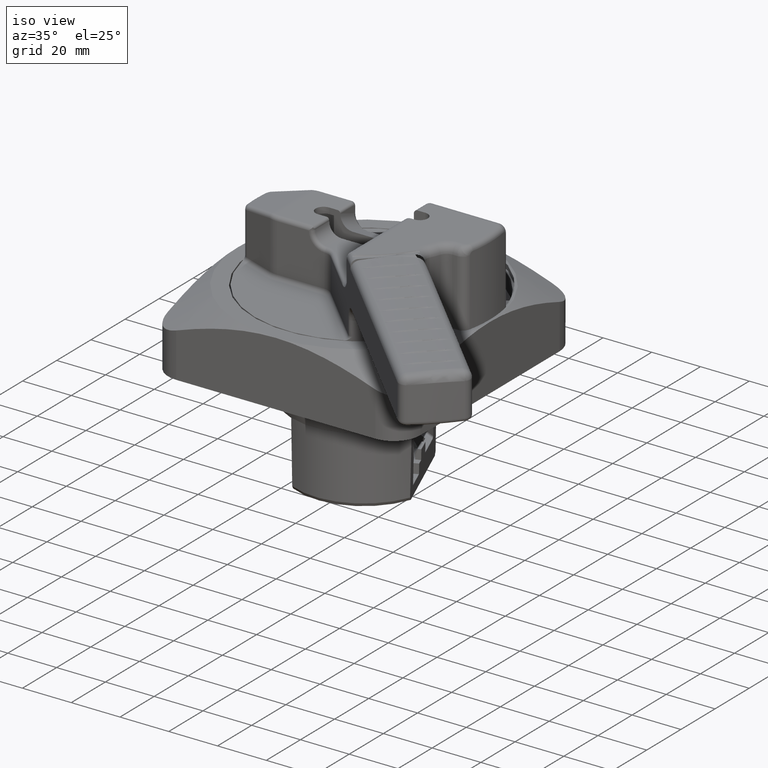
[diagram: clean part render]
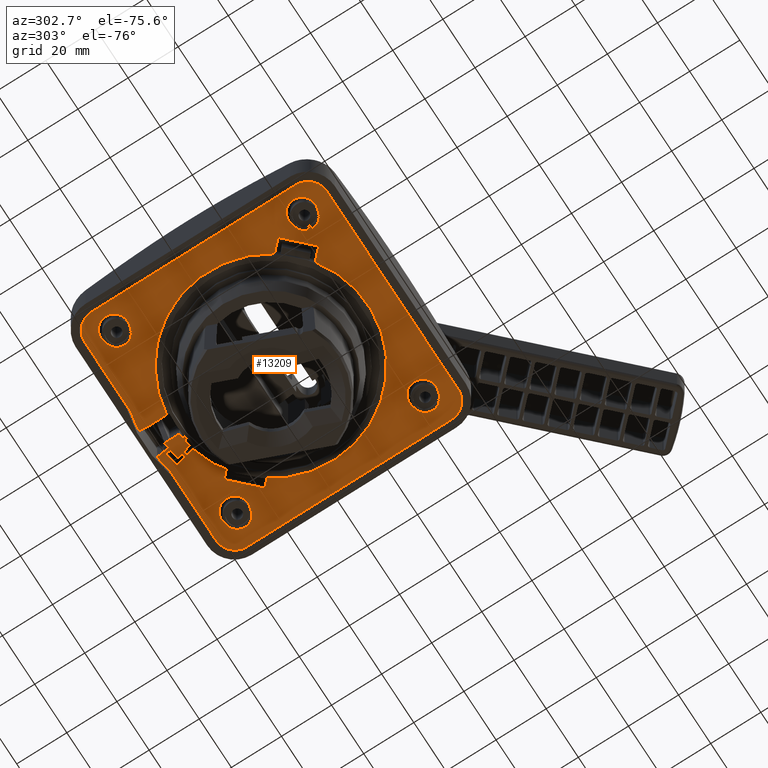
[diagram: tour spotlight — one face highlighted and labeled with its STEP entity id]
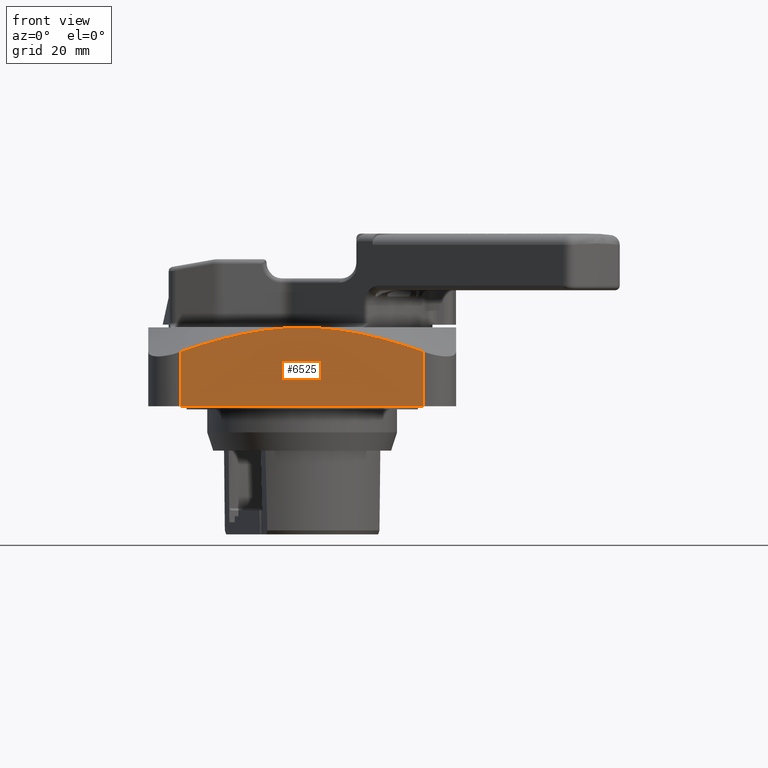
[diagram: tour spotlight — one face highlighted and labeled with its STEP entity id]
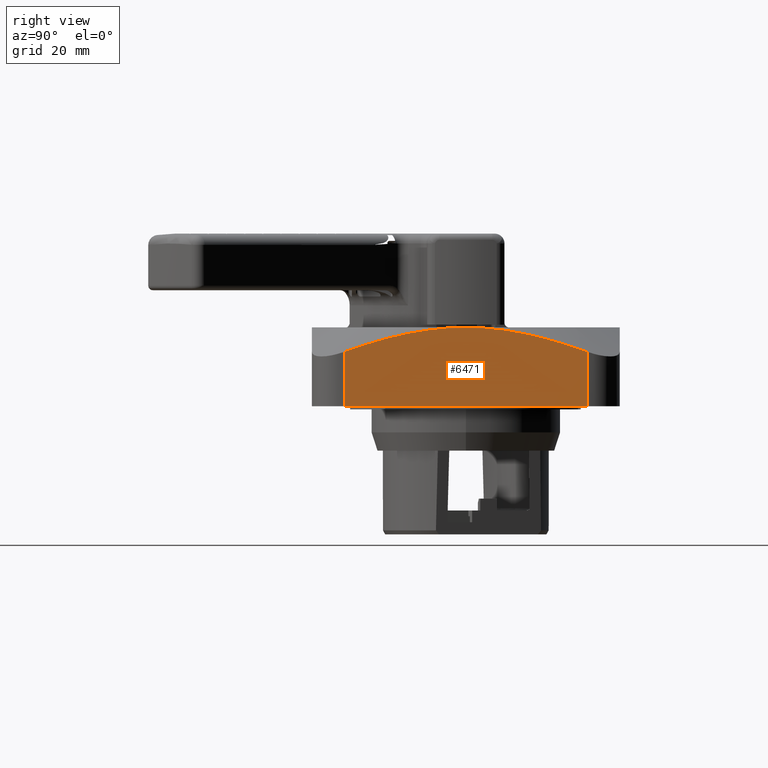
[diagram: tour spotlight — one face highlighted and labeled with its STEP entity id]
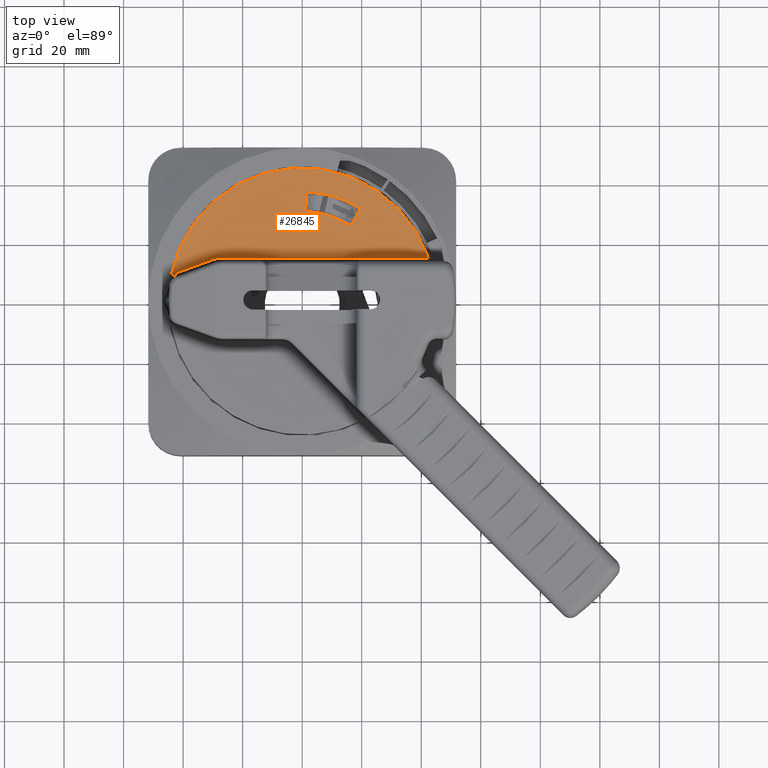
[diagram: tour spotlight — one face highlighted and labeled with its STEP entity id]
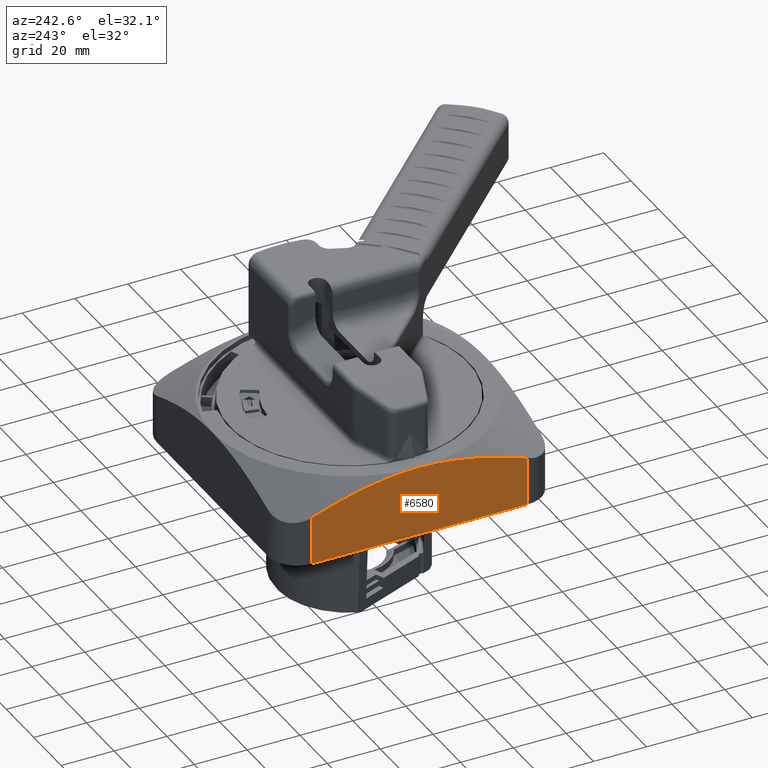
[diagram: tour spotlight — one face highlighted and labeled with its STEP entity id]
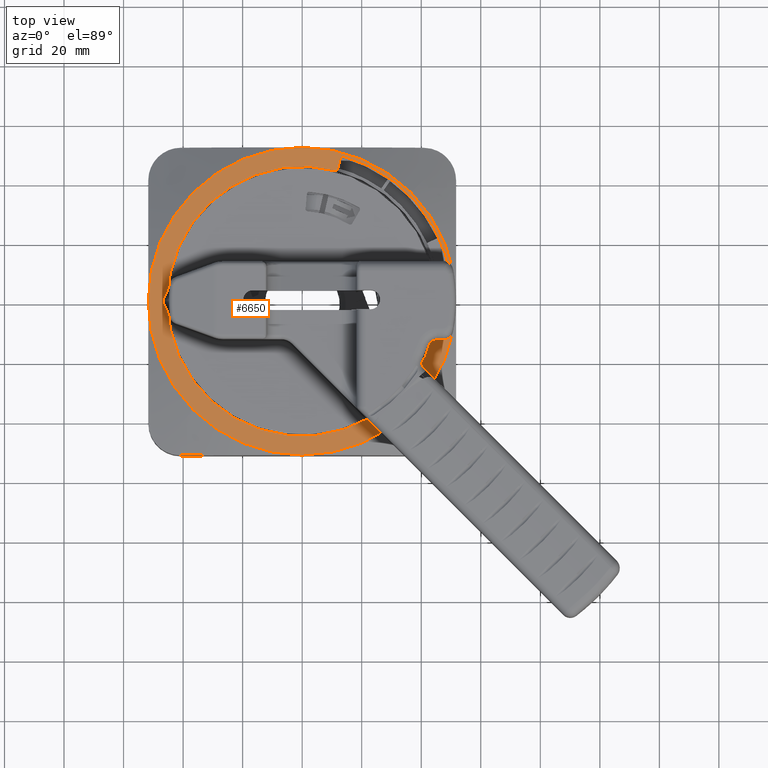
[diagram: tour spotlight — one face highlighted and labeled with its STEP entity id]
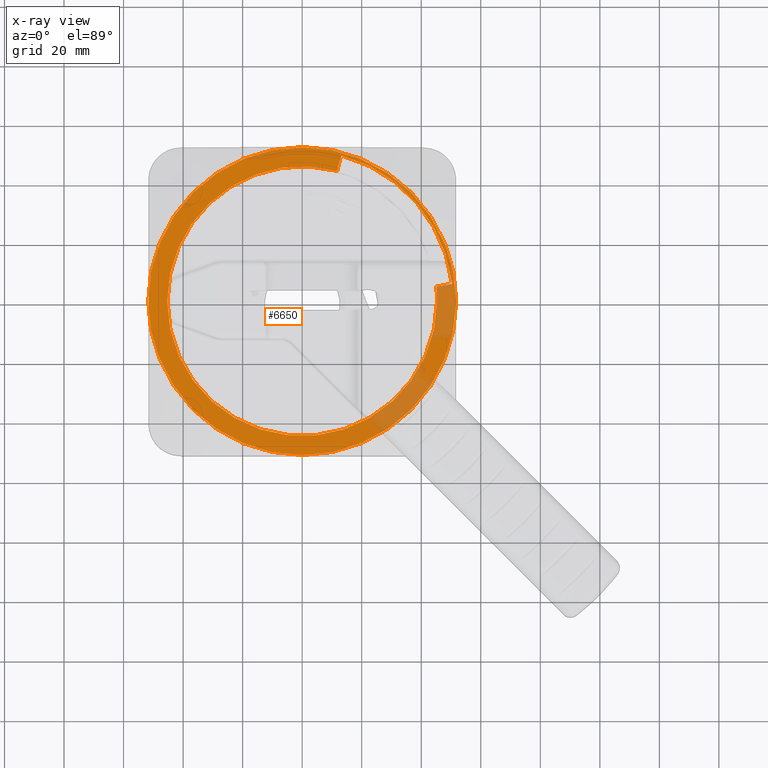
[diagram: x-ray of the same camera — body ghosted, this tour face saturated]
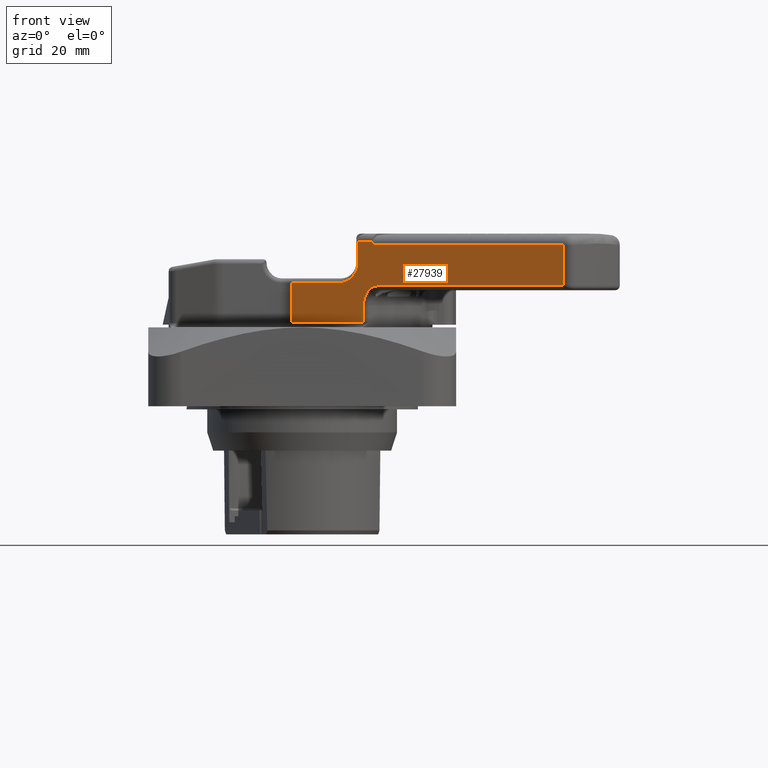
[diagram: tour spotlight — one face highlighted and labeled with its STEP entity id]
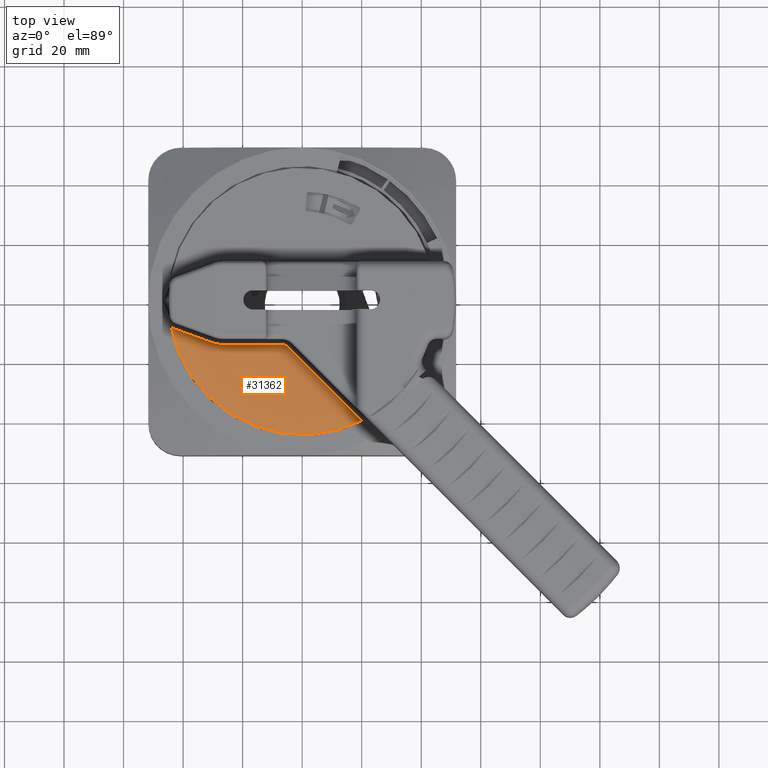
[diagram: tour spotlight — one face highlighted and labeled with its STEP entity id]
A machine part: a face-by-face anatomy tour. The part has 941 B-rep faces; the first image is the clean iso view, then the 8 largest visible faces are spotlighted one at a time (largest first), each with its STEP entity span.

Face 1 — auxiliary view, entity #13209. In plain terms, the highlighted planar face has unit normal (0, 0, 1).
Definition (entity closure, byte-faithful):
#10687=CARTESIAN_POINT('',(0.E0,0.E0,0.E0));
#10688=DIRECTION('',(0.E0,0.E0,-1.E0));
#10689=DIRECTION('',(8.496732026142E-2,9.963837385704E-1,0.E0));
#10690=AXIS2_PLACEMENT_3D('',#10687,#10688,#10689);
#10695=CARTESIAN_POINT('',(0.E0,0.E0,0.E0));
#10696=DIRECTION('',(0.E0,0.E0,-1.E0));
#10697=DIRECTION('',(1.342281879195E-1,9.909504496027E-1,0.E0));
#10698=AXIS2_PLACEMENT_3D('',#10695,#10696,#10697);
#10703=CARTESIAN_POINT('',(0.E0,0.E0,0.E0));
#10704=DIRECTION('',(0.E0,0.E0,-1.E0));
#10705=DIRECTION('',(1.568627450980E-1,9.876204125069E-1,0.E0));
#10706=AXIS2_PLACEMENT_3D('',#10703,#10704,#10705);
#10711=DIRECTION('',(2.588190451034E-1,9.659258262888E-1,0.E0));
#10712=VECTOR('',#10711,1.199999999998E-1);
#10713=CARTESIAN_POINT('',(3.377329792775E-1,1.492258836365E0,0.E0));
#10714=LINE('',#10713,#10712);
#10718=DIRECTION('',(9.659258262891E-1,-2.588190451025E-1,0.E0));
#10719=VECTOR('',#10718,5.999999999999E-2);
#10720=CARTESIAN_POINT('',(3.687912646898E-1,1.608169935519E0,0.E0));
#10721=LINE('',#10720,#10719);
#10725=DIRECTION('',(-2.588190451029E-1,-9.659258262890E-1,0.E0));
#10726=VECTOR('',#10725,1.188230767490E-1);
#10727=CARTESIAN_POINT('',(4.267468142672E-1,1.592640792813E0,0.E0));
#10728=LINE('',#10727,#10726);
#10732=CARTESIAN_POINT('',(0.E0,0.E0,0.E0));
#10733=DIRECTION('',(0.E0,0.E0,-1.E0));
#10734=DIRECTION('',(2.588190451026E-1,9.659258262890E-1,0.E0));
#10735=AXIS2_PLACEMENT_3D('',#10732,#10733,#10734);
#10740=DIRECTION('',(7.071067811867E-1,7.071067811864E-1,0.E0));
#10741=VECTOR('',#10740,1.449169458131E-1);
#10742=CARTESIAN_POINT('',(8.698000690381E-1,1.258708798691E0,0.E0));
#10743=LINE('',#10742,#10741);
#10747=DIRECTION('',(7.071067811865E-1,-7.071067811866E-1,0.E0));
#10748=VECTOR('',#10747,5.5E-1);
#10749=CARTESIAN_POINT('',(9.722718241314E-1,1.361180553784E0,0.E0));
#10750=LINE('',#10749,#10748);
#10754=DIRECTION('',(-7.071067811866E-1,-7.071067811865E-1,0.E0));
#10755=VECTOR('',#10754,1.449169458130E-1);
#10756=CARTESIAN_POINT('',(1.361180553784E0,9.722718241314E-1,0.E0));
#10757=LINE('',#10756,#10755);
#10761=CARTESIAN_POINT('',(0.E0,0.E0,0.E0));
#10762=DIRECTION('',(0.E0,0.E0,-1.E0));
#10763=DIRECTION('',(8.226854893404E-1,5.684967771490E-1,0.E0));
#10764=AXIS2_PLACEMENT_3D('',#10761,#10762,#10763);
#10769=CARTESIAN_POINT('',(0.E0,0.E0,0.E0));
#10770=DIRECTION('',(0.E0,0.E0,-1.E0));
#10771=DIRECTION('',(9.999999995480E-1,-3.006702079758E-5,0.E0));
#10772=AXIS2_PLACEMENT_3D('',#10769,#10770,#10771);
#10777=DIRECTION('',(-7.071067811861E-1,-7.071067811870E-1,0.E0));
#10778=VECTOR('',#10777,2.240119522384E-1);
#10779=CARTESIAN_POINT('',(-8.739755300375E-1,-1.255813191878E0,0.E0));
#10780=LINE('',#10779,#10778);
#10784=DIRECTION('',(-7.071067811865E-1,7.071067811865E-1,0.E0));
#10785=VECTOR('',#10784,5.500000000006E-1);
#10786=CARTESIAN_POINT('',(-1.032375900532E0,-1.414213562373E0,0.E0));
#10787=LINE('',#10786,#10785);
#10791=DIRECTION('',(7.071067811877E-1,7.071067811854E-1,0.E0));
#10792=VECTOR('',#10791,2.258391043507E-1);
#10793=CARTESIAN_POINT('',(-1.421284630185E0,-1.025304832720E0,0.E0));
#10794=LINE('',#10793,#10792);
#10798=CARTESIAN_POINT('',(0.E0,0.E0,0.E0));
#10799=DIRECTION('',(0.E0,0.E0,-1.E0));
#10800=DIRECTION('',(-8.245701098309E-1,-5.657597846909E-1,0.E0));
#10801=AXIS2_PLACEMENT_3D('',#10798,#10799,#10800);
#10806=DIRECTION('',(-1.218693434053E-1,9.925461516413E-1,0.E0));
#10807=VECTOR('',#10806,1.170321927751E-1);
#10808=CARTESIAN_POINT('',(-1.8E-1,1.831174486498E0,0.E0));
#10809=LINE('',#10808,#10807);
#10813=CARTESIAN_POINT('',(0.E0,0.E0,0.E0));
#10814=DIRECTION('',(0.E0,0.E0,1.E0));
#10815=DIRECTION('',(-9.926552707758E-2,9.950609806107E-1,0.E0));
#10816=AXIS2_PLACEMENT_3D('',#10813,#10814,#10815);
#10821=CARTESIAN_POINT('',(-1.6E0,1.6E0,0.E0));
#10822=DIRECTION('',(0.E0,0.E0,1.E0));
#10823=DIRECTION('',(0.E0,1.E0,0.E0));
#10824=AXIS2_PLACEMENT_3D('',#10821,#10822,#10823);
#10829=CARTESIAN_POINT('',(-1.6E0,-1.61E0,0.E0));
#10830=DIRECTION('',(0.E0,0.E0,1.E0));
#10831=DIRECTION('',(-1.E0,0.E0,0.E0));
#10832=AXIS2_PLACEMENT_3D('',#10829,#10830,#10831);
#10837=CARTESIAN_POINT('',(1.61E0,-1.61E0,0.E0));
#10838=DIRECTION('',(0.E0,0.E0,1.E0));
#10839=DIRECTION('',(0.E0,-1.E0,0.E0));
#10840=AXIS2_PLACEMENT_3D('',#10837,#10838,#10839);
#10845=CARTESIAN_POINT('',(1.61E0,1.6E0,0.E0));
#10846=DIRECTION('',(0.E0,0.E0,1.E0));
#10847=DIRECTION('',(1.E0,0.E0,0.E0));
#10848=AXIS2_PLACEMENT_3D('',#10845,#10846,#10847);
#10853=CARTESIAN_POINT('',(0.E0,0.E0,0.E0));
#10854=DIRECTION('',(0.E0,0.E0,1.E0));
#10855=DIRECTION('',(2.395915083350E-1,9.708737864078E-1,0.E0));
#10856=AXIS2_PLACEMENT_3D('',#10853,#10854,#10855);
#10861=DIRECTION('',(-1.218693434053E-1,-9.925461516413E-1,0.E0));
#10862=VECTOR('',#10861,1.969999999998E-1);
#10863=CARTESIAN_POINT('',(2.384983050439E-1,1.942412818762E0,0.E0));
#10864=LINE('',#10863,#10862);
#10868=CARTESIAN_POINT('',(0.E0,0.E0,0.E0));
#10869=DIRECTION('',(0.E0,0.E0,1.E0));
#10870=DIRECTION('',(1.218693434052E-1,9.925461516413E-1,0.E0));
#10871=AXIS2_PLACEMENT_3D('',#10868,#10869,#10870);
#10876=CARTESIAN_POINT('',(1.41765E0,1.4765E0,0.E0));
#10877=DIRECTION('',(0.E0,0.E0,-1.E0));
#10878=DIRECTION('',(1.E0,0.E0,0.E0));
#10879=AXIS2_PLACEMENT_3D('',#10876,#10877,#10878);
#10884=CARTESIAN_POINT('',(1.41765E0,1.4765E0,0.E0));
#10885=DIRECTION('',(0.E0,0.E0,-1.E0));
#10886=DIRECTION('',(-1.E0,0.E0,0.E0));
#10887=AXIS2_PLACEMENT_3D('',#10884,#10885,#10886);
#10892=CARTESIAN_POINT('',(-1.53535E0,1.4765E0,0.E0));
#10893=DIRECTION('',(0.E0,0.E0,-1.E0));
#10894=DIRECTION('',(1.E0,0.E0,0.E0));
#10895=AXIS2_PLACEMENT_3D('',#10892,#10893,#10894);
#10900=CARTESIAN_POINT('',(-1.53535E0,1.4765E0,0.E0));
#10901=DIRECTION('',(0.E0,0.E0,-1.E0));
#10902=DIRECTION('',(-1.E0,0.E0,0.E0));
#10903=AXIS2_PLACEMENT_3D('',#10900,#10901,#10902);
#10908=CARTESIAN_POINT('',(-1.53535E0,-1.4765E0,0.E0));
#10909=DIRECTION('',(0.E0,0.E0,-1.E0));
#10910=DIRECTION('',(1.E0,0.E0,0.E0));
#10911=AXIS2_PLACEMENT_3D('',#10908,#10909,#10910);
#10916=CARTESIAN_POINT('',(-1.53535E0,-1.4765E0,0.E0));
#10917=DIRECTION('',(0.E0,0.E0,-1.E0));
#10918=DIRECTION('',(-1.E0,0.E0,0.E0));
#10919=AXIS2_PLACEMENT_3D('',#10916,#10917,#10918);
#10924=CARTESIAN_POINT('',(1.41765E0,-1.4765E0,0.E0));
#10925=DIRECTION('',(0.E0,0.E0,-1.E0));
#10926=DIRECTION('',(1.E0,0.E0,0.E0));
#10927=AXIS2_PLACEMENT_3D('',#10924,#10925,#10926);
#10932=CARTESIAN_POINT('',(1.41765E0,-1.4765E0,0.E0));
#10933=DIRECTION('',(0.E0,0.E0,-1.E0));
#10934=DIRECTION('',(-1.E0,0.E0,0.E0));
#10935=AXIS2_PLACEMENT_3D('',#10932,#10933,#10934);
#10940=DIRECTION('',(-2.588190451017E-1,-9.659258262893E-1,0.E0));
#10941=VECTOR('',#10940,1.521769232515E-1);
#10942=CARTESIAN_POINT('',(4.762270429886E-1,1.777303520372E0,0.E0));
#10943=LINE('',#10942,#10941);
#10947=DIRECTION('',(-9.659258262863E-1,2.588190451129E-1,0.E0));
#10948=VECTOR('',#10947,6.000000000018E-2);
#10949=CARTESIAN_POINT('',(4.368407570262E-1,1.630311900038E0,0.E0));
#10950=LINE('',#10949,#10948);
#10954=DIRECTION('',(2.588190451041E-1,9.659258262887E-1,0.E0));
#10955=VECTOR('',#10954,7.115389865417E-2);
#10956=CARTESIAN_POINT('',(3.788852074488E-1,1.645841042745E0,0.E0));
#10957=LINE('',#10956,#10955);
#10961=CARTESIAN_POINT('',(0.E0,0.E0,0.E0));
#10962=DIRECTION('',(0.E0,0.E0,1.E0));
#10963=DIRECTION('',(2.257393133829E-1,9.741877449411E-1,0.E0));
#10964=AXIS2_PLACEMENT_3D('',#10961,#10962,#10963);
#10969=DIRECTION('',(1.218693434059E-1,9.925461516412E-1,0.E0));
#10970=VECTOR('',#10969,8.001977017674E-2);
#10971=CARTESIAN_POINT('',(2.541364881474E-1,1.741555237537E0,0.E0));
#10972=LINE('',#10971,#10970);
#10976=CARTESIAN_POINT('',(0.E0,0.E0,0.E0));
#10977=DIRECTION('',(0.E0,0.E0,-1.E0));
#10978=DIRECTION('',(1.434176331513E-1,9.896622567832E-1,0.E0));
#10979=AXIS2_PLACEMENT_3D('',#10976,#10977,#10978);
#10992=DIRECTION('',(8.819538919142E-14,1.E0,-1.630446141886E-13));
#10993=VECTOR('',#10992,7.521461873407E-2);
#10994=CARTESIAN_POINT('',(1.3E-1,1.679977678423E0,-1.403044347370E-14));
#10995=LINE('',#10994,#10993);
#11420=DIRECTION('',(-9.078628428489E-14,1.E0,0.E0));
#11421=VECTOR('',#11420,4.035561109392E-2);
#11422=CARTESIAN_POINT('',(2.E-1,1.476516169908E0,0.E0));
#11423=LINE('',#11422,#11421);
#11434=DIRECTION('',(1.036970711027E-13,1.E0,-9.010281938328E-14));
#11435=VECTOR('',#11434,1.555105584101E-1);
#11436=CARTESIAN_POINT('',(1.3E-1,1.524467120013E0,0.E0));
#11437=LINE('',#11436,#11435);
#11591=DIRECTION('',(3.347052378477E-14,-1.E0,0.E0));
#11592=VECTOR('',#11591,3.117996150460E-1);
#11593=CARTESIAN_POINT('',(-1.8E-1,1.831174486498E0,0.E0));
#11594=LINE('',#11593,#11592);
#11719=DIRECTION('',(1.E0,0.E0,0.E0));
#11720=VECTOR('',#11719,1.141119418188E0);
#11721=CARTESIAN_POINT('',(4.688805818116E-1,1.9E0,0.E0));
#11722=LINE('',#11721,#11720);
#11747=DIRECTION('',(0.E0,-1.E0,0.E0));
#11748=VECTOR('',#11747,3.21E0);
#11749=CARTESIAN_POINT('',(1.91E0,1.6E0,0.E0));
#11750=LINE('',#11749,#11748);
#11775=DIRECTION('',(-1.E0,0.E0,0.E0));
#11776=VECTOR('',#11775,3.21E0);
#11777=CARTESIAN_POINT('',(1.61E0,-1.91E0,0.E0));
#11778=LINE('',#11777,#11776);
#11803=DIRECTION('',(0.E0,1.E0,0.E0));
#11804=VECTOR('',#11803,3.21E0);
#11805=CARTESIAN_POINT('',(-1.9E0,-1.61E0,0.E0));
#11806=LINE('',#11805,#11804);
#11845=DIRECTION('',(1.E0,2.021943389842E-14,0.E0));
#11846=VECTOR('',#11845,1.131119418188E0);
#11847=CARTESIAN_POINT('',(-1.6E0,1.9E0,0.E0));
#11848=LINE('',#11847,#11846);
#12007=DIRECTION('',(1.367394121679E-12,-1.E0,0.E0));
#12008=VECTOR('',#12007,4.051511415068E-2);
#12009=CARTESIAN_POINT('',(2.4E-1,1.511059231136E0,0.E0));
#12010=LINE('',#12009,#12008);
#12669=CARTESIAN_POINT('',(1.62765E0,1.4765E0,0.E0));
#12670=CARTESIAN_POINT('',(1.20765E0,1.4765E0,0.E0));
#12671=VERTEX_POINT('',#12669);
#12672=VERTEX_POINT('',#12670);
#12673=CARTESIAN_POINT('',(-1.32535E0,1.4765E0,0.E0));
#12674=CARTESIAN_POINT('',(-1.74535E0,1.4765E0,0.E0));
#12675=VERTEX_POINT('',#12673);
#12676=VERTEX_POINT('',#12674);
#12677=CARTESIAN_POINT('',(-1.32535E0,-1.4765E0,0.E0));
#12678=CARTESIAN_POINT('',(-1.74535E0,-1.4765E0,0.E0));
#12679=VERTEX_POINT('',#12677);
#12680=VERTEX_POINT('',#12678);
#12681=CARTESIAN_POINT('',(1.62765E0,-1.4765E0,0.E0));
#12682=CARTESIAN_POINT('',(1.20765E0,-1.4765E0,0.E0));
#12683=VERTEX_POINT('',#12681);
#12684=VERTEX_POINT('',#12682);
#12693=CARTESIAN_POINT('',(4.762270429886E-1,1.777303520372E0,0.E0));
#12694=CARTESIAN_POINT('',(4.368407570262E-1,1.630311900038E0,0.E0));
#12695=VERTEX_POINT('',#12693);
#12696=VERTEX_POINT('',#12694);
#12697=CARTESIAN_POINT('',(3.788852074488E-1,1.645841042745E0,0.E0));
#12698=VERTEX_POINT('',#12697);
#12699=CARTESIAN_POINT('',(3.973011915539E-1,1.714570431096E0,0.E0));
#12700=VERTEX_POINT('',#12699);
#12701=CARTESIAN_POINT('',(2.541364881474E-1,1.741555237537E0,0.E0));
#12702=VERTEX_POINT('',#12701);
#12703=CARTESIAN_POINT('',(2.638884449984E-1,1.820978552481E0,0.E0));
#12704=VERTEX_POINT('',#12703);
#12705=CARTESIAN_POINT('',(1.3E-1,1.679977678423E0,-1.403044347370E-14));
#12706=CARTESIAN_POINT('',(1.3E-1,1.755192297157E0,-2.629378196654E-14));
#12707=VERTEX_POINT('',#12705);
#12708=VERTEX_POINT('',#12706);
#12709=CARTESIAN_POINT('',(1.3E-1,1.524467120013E0,0.E0));
#12710=VERTEX_POINT('',#12709);
#12711=CARTESIAN_POINT('',(2.E-1,1.516871781002E0,0.E0));
#12712=VERTEX_POINT('',#12711);
#12713=CARTESIAN_POINT('',(2.E-1,1.476516169908E0,0.E0));
#12714=VERTEX_POINT('',#12713);
#12715=CARTESIAN_POINT('',(2.4E-1,1.511059231136E0,0.E0));
#12716=CARTESIAN_POINT('',(2.4E-1,1.470544116985E0,0.E0));
#12717=VERTEX_POINT('',#12715);
#12718=VERTEX_POINT('',#12716);
#12719=CARTESIAN_POINT('',(3.377329792775E-1,1.492258836365E0,0.E0));
#12720=VERTEX_POINT('',#12719);
#12721=CARTESIAN_POINT('',(3.687912646898E-1,1.608169935519E0,0.E0));
#12722=VERTEX_POINT('',#12721);
#12723=CARTESIAN_POINT('',(4.267468142672E-1,1.592640792813E0,0.E0));
#12724=VERTEX_POINT('',#12723);
#12725=CARTESIAN_POINT('',(3.959931390068E-1,1.477866514222E0,0.E0));
#12726=VERTEX_POINT('',#12725);
#12727=CARTESIAN_POINT('',(8.698000690381E-1,1.258708798691E0,0.E0));
#12728=VERTEX_POINT('',#12727);
#12729=CARTESIAN_POINT('',(9.722718241314E-1,1.361180553784E0,0.E0));
#12730=VERTEX_POINT('',#12729);
#12731=CARTESIAN_POINT('',(1.361180553784E0,9.722718241314E-1,0.E0));
#12732=VERTEX_POINT('',#12731);
#12733=CARTESIAN_POINT('',(1.258708798691E0,8.698000690382E-1,0.E0));
#12734=VERTEX_POINT('',#12733);
#12735=CARTESIAN_POINT('',(-8.739755300375E-1,-1.255813191878E0,0.E0));
#12736=CARTESIAN_POINT('',(-1.032375900532E0,-1.414213562373E0,0.E0));
#12737=VERTEX_POINT('',#12735);
#12738=VERTEX_POINT('',#12736);
#12739=CARTESIAN_POINT('',(-1.421284630185E0,-1.025304832720E0,0.E0));
#12740=VERTEX_POINT('',#12739);
#12741=CARTESIAN_POINT('',(-1.261592268041E0,-8.656124705768E-1,0.E0));
#12742=VERTEX_POINT('',#12741);
#12743=CARTESIAN_POINT('',(-1.8E-1,1.831174486498E0,0.E0));
#12744=CARTESIAN_POINT('',(-1.8E-1,1.519374871452E0,0.E0));
#12745=VERTEX_POINT('',#12743);
#12746=VERTEX_POINT('',#12744);
#12747=CARTESIAN_POINT('',(-1.942626364908E-1,1.947334339055E0,0.E0));
#12748=VERTEX_POINT('',#12747);
#12749=CARTESIAN_POINT('',(-4.688805818116E-1,1.9E0,0.E0));
#12750=VERTEX_POINT('',#12749);
#12751=CARTESIAN_POINT('',(-1.6E0,1.9E0,0.E0));
#12752=VERTEX_POINT('',#12751);
#12753=CARTESIAN_POINT('',(-1.9E0,1.6E0,0.E0));
#12754=VERTEX_POINT('',#12753);
#12755=CARTESIAN_POINT('',(-1.9E0,-1.61E0,0.E0));
#12756=VERTEX_POINT('',#12755);
#12757=CARTESIAN_POINT('',(-1.6E0,-1.91E0,0.E0));
#12758=VERTEX_POINT('',#12757);
#12759=CARTESIAN_POINT('',(1.61E0,-1.91E0,0.E0));
#12760=VERTEX_POINT('',#12759);
#12761=CARTESIAN_POINT('',(1.91E0,-1.61E0,0.E0));
#12762=VERTEX_POINT('',#12761);
#12763=CARTESIAN_POINT('',(1.91E0,1.6E0,0.E0));
#12764=VERTEX_POINT('',#12763);
#12765=CARTESIAN_POINT('',(1.61E0,1.9E0,0.E0));
#12766=VERTEX_POINT('',#12765);
#12767=CARTESIAN_POINT('',(4.688805818116E-1,1.9E0,0.E0));
#12768=VERTEX_POINT('',#12767);
#12769=CARTESIAN_POINT('',(2.384983050438E-1,1.942412818762E0,0.E0));
#12770=VERTEX_POINT('',#12769);
#12771=CARTESIAN_POINT('',(2.144900443931E-1,1.746881226889E0,0.E0));
#12772=VERTEX_POINT('',#12771);
#12921=CARTESIAN_POINT('',(1.529999999308E0,-4.600254182041E-5,0.E0));
#12922=VERTEX_POINT('',#12921);
#13098=CARTESIAN_POINT('',(5.E-3,1.866716952764E-2,0.E0));
#13099=DIRECTION('',(0.E0,0.E0,1.E0));
#13100=DIRECTION('',(1.E0,0.E0,0.E0));
#13101=AXIS2_PLACEMENT_3D('',#13098,#13099,#13100);
#13102=PLANE('',#13101);
#13104=ORIENTED_EDGE('',*,*,#13103,.F.);
#13106=ORIENTED_EDGE('',*,*,#13105,.F.);
#13108=ORIENTED_EDGE('',*,*,#13107,.T.);
#13110=ORIENTED_EDGE('',*,*,#13109,.F.);
#13112=ORIENTED_EDGE('',*,*,#13111,.T.);
#13114=ORIENTED_EDGE('',*,*,#13113,.F.);
#13116=ORIENTED_EDGE('',*,*,#13115,.T.);
#13118=ORIENTED_EDGE('',*,*,#13117,.T.);
#13120=ORIENTED_EDGE('',*,*,#13119,.T.);
#13122=ORIENTED_EDGE('',*,*,#13121,.T.);
#13123=ORIENTED_EDGE('',*,*,#13068,.T.);
#13125=ORIENTED_EDGE('',*,*,#13124,.T.);
#13127=ORIENTED_EDGE('',*,*,#13126,.T.);
#13129=ORIENTED_EDGE('',*,*,#13128,.T.);
#13130=ORIENTED_EDGE('',*,*,#13052,.T.);
#13131=ORIENTED_EDGE('',*,*,#13050,.T.);
#13133=ORIENTED_EDGE('',*,*,#13132,.T.);
#13135=ORIENTED_EDGE('',*,*,#13134,.T.);
#13137=ORIENTED_EDGE('',*,*,#13136,.T.);
#13138=ORIENTED_EDGE('',*,*,#13080,.T.);
#13140=ORIENTED_EDGE('',*,*,#13139,.F.);
#13142=ORIENTED_EDGE('',*,*,#13141,.T.);
#13144=ORIENTED_EDGE('',*,*,#13143,.T.);
#13146=ORIENTED_EDGE('',*,*,#13145,.F.);
#13148=ORIENTED_EDGE('',*,*,#13147,.T.);
#13150=ORIENTED_EDGE('',*,*,#13149,.F.);
#13152=ORIENTED_EDGE('',*,*,#13151,.T.);
#13154=ORIENTED_EDGE('',*,*,#13153,.F.);
#13156=ORIENTED_EDGE('',*,*,#13155,.T.);
#13158=ORIENTED_EDGE('',*,*,#13157,.F.);
#13160=ORIENTED_EDGE('',*,*,#13159,.T.);
#13162=ORIENTED_EDGE('',*,*,#13161,.F.);
#13164=ORIENTED_EDGE('',*,*,#13163,.T.);
#13166=ORIENTED_EDGE('',*,*,#13165,.T.);
#13168=ORIENTED_EDGE('',*,*,#13167,.T.);
#13169=EDGE_LOOP('',(#13104,#13106,#13108,#13110,#13112,#13114,#13116,#13118,
#13120,#13122,#13123,#13125,#13127,#13129,#13130,#13131,#13133,#13135,#13137,
#13138,#13140,#13142,#13144,#13146,#13148,#13150,#13152,#13154,#13156,#13158,
#13160,#13162,#13164,#13166,#13168));
#13170=FACE_OUTER_BOUND('',#13169,.F.);
#13172=ORIENTED_EDGE('',*,*,#13171,.T.);
#13174=ORIENTED_EDGE('',*,*,#13173,.T.);
#13175=EDGE_LOOP('',(#13172,#13174));
#13176=FACE_BOUND('',#13175,.F.);
#13178=ORIENTED_EDGE('',*,*,#13177,.T.);
#13180=ORIENTED_EDGE('',*,*,#13179,.T.);
#13181=EDGE_LOOP('',(#13178,#13180));
#13182=FACE_BOUND('',#13181,.F.);
#13184=ORIENTED_EDGE('',*,*,#13183,.T.);
#13186=ORIENTED_EDGE('',*,*,#13185,.T.);
#13187=EDGE_LOOP('',(#13184,#13186));
#13188=FACE_BOUND('',#13187,.F.);
#13190=ORIENTED_EDGE('',*,*,#13189,.T.);
#13192=ORIENTED_EDGE('',*,*,#13191,.T.);
#13193=EDGE_LOOP('',(#13190,#13192));
#13194=FACE_BOUND('',#13193,.F.);
#13196=ORIENTED_EDGE('',*,*,#13195,.T.);
#13198=ORIENTED_EDGE('',*,*,#13197,.T.);
#13200=ORIENTED_EDGE('',*,*,#13199,.T.);
#13202=ORIENTED_EDGE('',*,*,#13201,.T.);
#13204=ORIENTED_EDGE('',*,*,#13203,.T.);
#13206=ORIENTED_EDGE('',*,*,#13205,.T.);
#13207=EDGE_LOOP('',(#13196,#13198,#13200,#13202,#13204,#13206));
#13208=FACE_BOUND('',#13207,.F.);
#13209=ADVANCED_FACE('',(#13170,#13176,#13182,#13188,#13194,#13208),#13102,.F.);
#10691=CIRCLE('',#10690,1.53E0);
#10699=CIRCLE('',#10698,1.49E0);
#10707=CIRCLE('',#10706,1.53E0);
#10736=CIRCLE('',#10735,1.53E0);
#10765=CIRCLE('',#10764,1.53E0);
#10773=CIRCLE('',#10772,1.53E0);
#10802=CIRCLE('',#10801,1.53E0);
#10817=CIRCLE('',#10816,1.957E0);
#10825=CIRCLE('',#10824,3.E-1);
#10833=CIRCLE('',#10832,3.E-1);
#10841=CIRCLE('',#10840,3.E-1);
#10849=CIRCLE('',#10848,3.E-1);
#10857=CIRCLE('',#10856,1.957E0);
#10872=CIRCLE('',#10871,1.76E0);
#10880=CIRCLE('',#10879,2.1E-1);
#10888=CIRCLE('',#10887,2.1E-1);
#10896=CIRCLE('',#10895,2.1E-1);
#10904=CIRCLE('',#10903,2.1E-1);
#10912=CIRCLE('',#10911,2.1E-1);
#10920=CIRCLE('',#10919,2.1E-1);
#10928=CIRCLE('',#10927,2.1E-1);
#10936=CIRCLE('',#10935,2.1E-1);
#10965=CIRCLE('',#10964,1.76E0);
#10980=CIRCLE('',#10979,1.84E0);
#13050=EDGE_CURVE('',#12922,#12737,#10773,.T.);
#13052=EDGE_CURVE('',#12734,#12922,#10765,.T.);
#13068=EDGE_CURVE('',#12726,#12728,#10736,.T.);
#13080=EDGE_CURVE('',#12742,#12746,#10802,.T.);
#13103=EDGE_CURVE('',#12707,#12708,#10995,.T.);
#13105=EDGE_CURVE('',#12710,#12707,#11437,.T.);
#13107=EDGE_CURVE('',#12710,#12712,#10691,.T.);
#13109=EDGE_CURVE('',#12714,#12712,#11423,.T.);
#13111=EDGE_CURVE('',#12714,#12718,#10699,.T.);
#13113=EDGE_CURVE('',#12717,#12718,#12010,.T.);
#13115=EDGE_CURVE('',#12717,#12720,#10707,.T.);
#13117=EDGE_CURVE('',#12720,#12722,#10714,.T.);
#13119=EDGE_CURVE('',#12722,#12724,#10721,.T.);
#13121=EDGE_CURVE('',#12724,#12726,#10728,.T.);
#13124=EDGE_CURVE('',#12728,#12730,#10743,.T.);
#13126=EDGE_CURVE('',#12730,#12732,#10750,.T.);
#13128=EDGE_CURVE('',#12732,#12734,#10757,.T.);
#13132=EDGE_CURVE('',#12737,#12738,#10780,.T.);
#13134=EDGE_CURVE('',#12738,#12740,#10787,.T.);
#13136=EDGE_CURVE('',#12740,#12742,#10794,.T.);
#13139=EDGE_CURVE('',#12745,#12746,#11594,.T.);
#13141=EDGE_CURVE('',#12745,#12748,#10809,.T.);
#13143=EDGE_CURVE('',#12748,#12750,#10817,.T.);
#13145=EDGE_CURVE('',#12752,#12750,#11848,.T.);
#13147=EDGE_CURVE('',#12752,#12754,#10825,.T.);
#13149=EDGE_CURVE('',#12756,#12754,#11806,.T.);
#13151=EDGE_CURVE('',#12756,#12758,#10833,.T.);
#13153=EDGE_CURVE('',#12760,#12758,#11778,.T.);
#13155=EDGE_CURVE('',#12760,#12762,#10841,.T.);
#13157=EDGE_CURVE('',#12764,#12762,#11750,.T.);
#13159=EDGE_CURVE('',#12764,#12766,#10849,.T.);
#13161=EDGE_CURVE('',#12768,#12766,#11722,.T.);
#13163=EDGE_CURVE('',#12768,#12770,#10857,.T.);
#13165=EDGE_CURVE('',#12770,#12772,#10864,.T.);
#13167=EDGE_CURVE('',#12772,#12708,#10872,.T.);
#13171=EDGE_CURVE('',#12671,#12672,#10880,.T.);
#13173=EDGE_CURVE('',#12672,#12671,#10888,.T.);
#13177=EDGE_CURVE('',#12675,#12676,#10896,.T.);
#13179=EDGE_CURVE('',#12676,#12675,#10904,.T.);
#13183=EDGE_CURVE('',#12679,#12680,#10912,.T.);
#13185=EDGE_CURVE('',#12680,#12679,#10920,.T.);
#13189=EDGE_CURVE('',#12683,#12684,#10928,.T.);
#13191=EDGE_CURVE('',#12684,#12683,#10936,.T.);
#13195=EDGE_CURVE('',#12695,#12696,#10943,.T.);
#13197=EDGE_CURVE('',#12696,#12698,#10950,.T.);
#13199=EDGE_CURVE('',#12698,#12700,#10957,.T.);
#13201=EDGE_CURVE('',#12700,#12702,#10965,.T.);
#13203=EDGE_CURVE('',#12702,#12704,#10972,.T.);
#13205=EDGE_CURVE('',#12704,#12695,#10980,.T.);

Face 2 — front view, entity #6525. In plain terms, the highlighted planar face has unit normal (0, 1, 0).
Definition (entity closure, byte-faithful):
#132=DIRECTION('',(0.E0,0.E0,-1.E0));
#133=VECTOR('',#132,7.211456813197E-1);
#134=CARTESIAN_POINT('',(1.6055E0,-2.0355E0,7.211456813197E-1));
#135=LINE('',#134,#133);
#139=DIRECTION('',(-1.E0,0.E0,0.E0));
#140=VECTOR('',#139,3.211E0);
#141=CARTESIAN_POINT('',(1.6055E0,-2.0355E0,0.E0));
#142=LINE('',#141,#140);
#146=DIRECTION('',(-1.539526691186E-14,-1.970594164718E-14,-1.E0));
#147=VECTOR('',#146,7.211456813197E-1);
#148=CARTESIAN_POINT('',(-1.6055E0,-2.0355E0,7.211456813197E-1));
#149=LINE('',#148,#147);
#420=CARTESIAN_POINT('',(1.6055E0,-2.0355E0,7.211456813197E-1));
#421=CARTESIAN_POINT('',(1.499758255963E0,-2.0355E0,7.589535975282E-1));
#422=CARTESIAN_POINT('',(1.298642754560E0,-2.035500376042E0,8.262771003099E-1));
#423=CARTESIAN_POINT('',(1.029299133210E0,-2.035498683853E0,9.030032792925E-1));
#424=CARTESIAN_POINT('',(7.907780101569E-1,-2.035504888544E0,
9.597007216554E-1));
#425=CARTESIAN_POINT('',(5.129870569149E-1,-2.035481761969E0,1.009229944788E0));
#426=CARTESIAN_POINT('',(2.538953239685E-1,-2.035568063578E0,1.036525652994E0));
#427=CARTESIAN_POINT('',(8.366204946776E-2,-2.035353343671E0,1.042862538478E0));
#428=CARTESIAN_POINT('',(8.642331850162E-10,-2.035353343671E0,
1.042862538478E0));
#461=CARTESIAN_POINT('',(8.642331850162E-10,-2.035353343671E0,
1.042862538478E0));
#462=CARTESIAN_POINT('',(-8.420619452052E-2,-2.035353343671E0,
1.042862540139E0));
#463=CARTESIAN_POINT('',(-2.553040443636E-1,-2.035568063578E0,
1.036437833104E0));
#464=CARTESIAN_POINT('',(-5.152570336319E-1,-2.035481761969E0,
1.008918384511E0));
#465=CARTESIAN_POINT('',(-7.927667535242E-1,-2.035504888544E0,
9.592762881147E-1));
#466=CARTESIAN_POINT('',(-1.031333045848E0,-2.035498683853E0,
9.024655476070E-1));
#467=CARTESIAN_POINT('',(-1.300281405255E0,-2.035500376042E0,
8.257470391936E-1));
#468=CARTESIAN_POINT('',(-1.500397423984E0,-2.0355E0,7.587250632703E-1));
#469=CARTESIAN_POINT('',(-1.6055E0,-2.0355E0,7.211456813197E-1));
#5463=CARTESIAN_POINT('',(-1.6055E0,-2.0355E0,0.E0));
#5464=VERTEX_POINT('',#5463);
#5465=CARTESIAN_POINT('',(1.6055E0,-2.0355E0,0.E0));
#5466=VERTEX_POINT('',#5465);
#5534=CARTESIAN_POINT('',(1.6055E0,-2.0355E0,7.211456813197E-1));
#5535=VERTEX_POINT('',#5534);
#5536=CARTESIAN_POINT('',(-1.6055E0,-2.0355E0,7.211456813197E-1));
#5537=VERTEX_POINT('',#5536);
#5538=VERTEX_POINT('',#461);
#6510=CARTESIAN_POINT('',(0.E0,-2.0355E0,5.214188101200E-1));
#6511=DIRECTION('',(0.E0,1.E0,0.E0));
#6512=DIRECTION('',(1.E0,0.E0,0.E0));
#6513=AXIS2_PLACEMENT_3D('',#6510,#6511,#6512);
#6514=PLANE('',#6513);
#6516=ORIENTED_EDGE('',*,*,#6515,.F.);
#6518=ORIENTED_EDGE('',*,*,#6517,.F.);
#6520=ORIENTED_EDGE('',*,*,#6519,.F.);
#6521=ORIENTED_EDGE('',*,*,#6489,.T.);
#6522=ORIENTED_EDGE('',*,*,#6338,.T.);
#6523=EDGE_LOOP('',(#6516,#6518,#6520,#6521,#6522));
#6524=FACE_OUTER_BOUND('',#6523,.F.);
#6525=ADVANCED_FACE('',(#6524),#6514,.F.);
#429=B_SPLINE_CURVE_WITH_KNOTS('',3,(#420,#421,#422,#423,#424,#425,#426,#427,
#428),.UNSPECIFIED.,.F.,.F.,(4,1,1,1,1,1,4),(0.E0,1.666666666667E-1,
3.333333333333E-1,5.E-1,6.666666666667E-1,8.333333333333E-1,1.E0),
.UNSPECIFIED.);
#470=B_SPLINE_CURVE_WITH_KNOTS('',3,(#461,#462,#463,#464,#465,#466,#467,#468,
#469),.UNSPECIFIED.,.F.,.F.,(4,1,1,1,1,1,4),(0.E0,1.666666666667E-1,
3.333333333333E-1,5.E-1,6.666666666667E-1,8.333333333333E-1,1.E0),
.UNSPECIFIED.);
#6338=EDGE_CURVE('',#5466,#5464,#142,.T.);
#6489=EDGE_CURVE('',#5535,#5466,#135,.T.);
#6515=EDGE_CURVE('',#5537,#5464,#149,.T.);
#6517=EDGE_CURVE('',#5538,#5537,#470,.T.);
#6519=EDGE_CURVE('',#5535,#5538,#429,.T.);

Face 3 — right view, entity #6471. In plain terms, the highlighted planar face has unit normal (1, 0, 0).
Definition (entity closure, byte-faithful):
#111=DIRECTION('',(0.E0,0.E0,-1.E0));
#112=VECTOR('',#111,7.211456813197E-1);
#113=CARTESIAN_POINT('',(2.0355E0,1.6055E0,7.211456813197E-1));
#114=LINE('',#113,#112);
#118=DIRECTION('',(0.E0,-1.E0,0.E0));
#119=VECTOR('',#118,3.211E0);
#120=CARTESIAN_POINT('',(2.0355E0,1.6055E0,0.E0));
#121=LINE('',#120,#119);
#125=DIRECTION('',(2.032175232366E-14,-1.539526691186E-14,-1.E0));
#126=VECTOR('',#125,7.211456813197E-1);
#127=CARTESIAN_POINT('',(2.0355E0,-1.6055E0,7.211456813197E-1));
#128=LINE('',#127,#126);
#317=CARTESIAN_POINT('',(2.0355E0,1.6055E0,7.211456813197E-1));
#318=CARTESIAN_POINT('',(2.0355E0,1.499758255970E0,7.589535975256E-1));
#319=CARTESIAN_POINT('',(2.035500366655E0,1.298642754597E0,8.262770839874E-1));
#320=CARTESIAN_POINT('',(2.035498716707E0,1.029299133172E0,9.030033363927E-1));
#321=CARTESIAN_POINT('',(2.035504766515E0,7.907780104280E-1,9.597005095369E-1));
#322=CARTESIAN_POINT('',(2.035482217231E0,5.129870560355E-1,1.009230736127E0));
#323=CARTESIAN_POINT('',(2.035566364560E0,2.538953273813E-1,1.036522699733E0));
#324=CARTESIAN_POINT('',(2.035357004540E0,8.366204216165E-2,1.042868901857E0));
#325=CARTESIAN_POINT('',(2.035357004540E0,-6.448555273098E-9,1.042868901857E0));
#433=CARTESIAN_POINT('',(2.035357004540E0,-6.448555273098E-9,1.042868901857E0));
#434=CARTESIAN_POINT('',(2.035357004540E0,-8.420620184248E-2,1.042868903261E0));
#435=CARTESIAN_POINT('',(2.035566364560E0,-2.553040409923E-1,1.036434879962E0));
#436=CARTESIAN_POINT('',(2.035482217231E0,-5.152570345808E-1,1.008919175817E0));
#437=CARTESIAN_POINT('',(2.035504766515E0,-7.927667533164E-1,
9.592760760033E-1));
#438=CARTESIAN_POINT('',(2.035498716707E0,-1.031333045950E0,9.024656047025E-1));
#439=CARTESIAN_POINT('',(2.035500366655E0,-1.300281405261E0,8.257470228700E-1));
#440=CARTESIAN_POINT('',(2.0355E0,-1.500397423994E0,7.587250632669E-1));
#441=CARTESIAN_POINT('',(2.0355E0,-1.6055E0,7.211456813197E-1));
#5467=CARTESIAN_POINT('',(2.0355E0,-1.6055E0,0.E0));
#5468=VERTEX_POINT('',#5467);
#5469=CARTESIAN_POINT('',(2.0355E0,1.6055E0,0.E0));
#5470=VERTEX_POINT('',#5469);
#5529=CARTESIAN_POINT('',(2.0355E0,1.6055E0,7.211456813197E-1));
#5530=VERTEX_POINT('',#5529);
#5531=CARTESIAN_POINT('',(2.0355E0,-1.6055E0,7.211456813197E-1));
#5532=VERTEX_POINT('',#5531);
#5533=VERTEX_POINT('',#433);
#6456=CARTESIAN_POINT('',(2.0355E0,0.E0,5.214188101185E-1));
#6457=DIRECTION('',(1.E0,0.E0,0.E0));
#6458=DIRECTION('',(0.E0,1.E0,0.E0));
#6459=AXIS2_PLACEMENT_3D('',#6456,#6457,#6458);
#6460=PLANE('',#6459);
#6462=ORIENTED_EDGE('',*,*,#6461,.F.);
#6464=ORIENTED_EDGE('',*,*,#6463,.F.);
#6466=ORIENTED_EDGE('',*,*,#6465,.F.);
#6467=ORIENTED_EDGE('',*,*,#6433,.T.);
#6468=ORIENTED_EDGE('',*,*,#6342,.T.);
#6469=EDGE_LOOP('',(#6462,#6464,#6466,#6467,#6468));
#6470=FACE_OUTER_BOUND('',#6469,.F.);
#6471=ADVANCED_FACE('',(#6470),#6460,.T.);
#326=B_SPLINE_CURVE_WITH_KNOTS('',3,(#317,#318,#319,#320,#321,#322,#323,#324,
#325),.UNSPECIFIED.,.F.,.F.,(4,1,1,1,1,1,4),(0.E0,1.666666666667E-1,
3.333333333333E-1,5.E-1,6.666666666667E-1,8.333333333333E-1,1.E0),
.UNSPECIFIED.);
#442=B_SPLINE_CURVE_WITH_KNOTS('',3,(#433,#434,#435,#436,#437,#438,#439,#440,
#441),.UNSPECIFIED.,.F.,.F.,(4,1,1,1,1,1,4),(0.E0,1.666666666667E-1,
3.333333333333E-1,5.E-1,6.666666666667E-1,8.333333333333E-1,1.E0),
.UNSPECIFIED.);
#6342=EDGE_CURVE('',#5470,#5468,#121,.T.);
#6433=EDGE_CURVE('',#5530,#5470,#114,.T.);
#6461=EDGE_CURVE('',#5532,#5468,#128,.T.);
#6463=EDGE_CURVE('',#5533,#5532,#442,.T.);
#6465=EDGE_CURVE('',#5530,#5533,#326,.T.);

Face 4 — top view, entity #26845. In plain terms, the highlighted planar face has unit normal (0, 0, 1).
Definition (entity closure, byte-faithful):
#14778=DIRECTION('',(-9.396926207860E-1,-3.420201433255E-1,0.E0));
#14779=VECTOR('',#14778,5.367067770310E-1);
#14780=CARTESIAN_POINT('',(-1.191827678768E0,5.460678269379E-1,1.043E0));
#14781=LINE('',#14780,#14779);
#14785=CARTESIAN_POINT('',(-1.634603450871E0,1.933586263925E-1,1.043E0));
#14786=DIRECTION('',(0.E0,0.E0,1.E0));
#14787=DIRECTION('',(-3.420201433275E-1,9.396926207853E-1,0.E0));
#14788=AXIS2_PLACEMENT_3D('',#14785,#14786,#14787);
#14793=CARTESIAN_POINT('',(0.E0,0.E0,1.043E0));
#14794=DIRECTION('',(0.E0,0.E0,-1.E0));
#14795=DIRECTION('',(-9.807646655898E-1,1.951939310799E-1,0.E0));
#14796=AXIS2_PLACEMENT_3D('',#14793,#14794,#14795);
#14801=CARTESIAN_POINT('',(-1.044759017138E0,1.42E-1,1.043E0));
#14802=DIRECTION('',(0.E0,0.E0,1.E0));
#14803=DIRECTION('',(0.E0,1.E0,0.E0));
#14804=AXIS2_PLACEMENT_3D('',#14801,#14802,#14803);
#14809=CARTESIAN_POINT('',(0.E0,0.E0,1.043E0));
#14810=DIRECTION('',(0.E0,0.E0,1.E0));
#14811=DIRECTION('',(5.181974503337E-1,8.552610142334E-1,0.E0));
#14812=AXIS2_PLACEMENT_3D('',#14809,#14810,#14811);
#14817=CARTESIAN_POINT('',(9.176431730561E-2,1.416029770192E0,1.043E0));
#14818=DIRECTION('',(0.E0,0.E0,1.E0));
#14819=DIRECTION('',(6.466829971499E-2,9.979068147938E-1,0.E0));
#14820=AXIS2_PLACEMENT_3D('',#14817,#14818,#14819);
#14825=DIRECTION('',(-8.715574274920E-2,-9.961946980916E-1,0.E0));
#14826=VECTOR('',#14825,2.000592254293E-1);
#14827=CARTESIAN_POINT('',(6.187847636285E-2,1.418644442474E0,1.043E0));
#14828=LINE('',#14827,#14826);
#14832=CARTESIAN_POINT('',(7.432800691978E-2,1.216731830515E0,1.043E0));
#14833=DIRECTION('',(0.E0,0.E0,1.E0));
#14834=DIRECTION('',(-9.961946980930E-1,8.715574273347E-2,0.E0));
#14835=AXIS2_PLACEMENT_3D('',#14832,#14833,#14834);
#14840=CARTESIAN_POINT('',(0.E0,0.E0,1.043E0));
#14841=DIRECTION('',(0.E0,0.E0,-1.E0));
#14842=DIRECTION('',(6.097457499570E-2,9.981393195362E-1,0.E0));
#14843=AXIS2_PLACEMENT_3D('',#14840,#14841,#14842);
#14848=CARTESIAN_POINT('',(6.352961566343E-1,1.040365221144E0,1.043E0));
#14849=DIRECTION('',(0.E0,0.E0,1.E0));
#14850=DIRECTION('',(-5.211617363672E-1,-8.534579336714E-1,0.E0));
#14851=AXIS2_PLACEMENT_3D('',#14848,#14849,#14850);
#14856=DIRECTION('',(5.000000000009E-1,8.660254037839E-1,0.E0));
#14857=VECTOR('',#14856,2.000520507782E-1);
#14858=CARTESIAN_POINT('',(6.612769187478E-1,1.025365221144E0,1.043E0));
#14859=LINE('',#14858,#14857);
#14863=CARTESIAN_POINT('',(7.353221820236E-1,1.213615379197E0,1.043E0));
#14864=DIRECTION('',(0.E0,0.E0,1.E0));
#14865=DIRECTION('',(8.660254037842E-1,-5.000000000005E-1,0.E0));
#14866=AXIS2_PLACEMENT_3D('',#14863,#14864,#14865);
#22106=DIRECTION('',(1.E0,0.E0,0.E0));
#22107=VECTOR('',#22106,2.715558825613E0);
#22108=CARTESIAN_POINT('',(-1.044759017138E0,5.72E-1,1.043E0));
#22109=LINE('',#22108,#22107);
#25107=CARTESIAN_POINT('',(-1.044759017138E0,5.72E-1,1.043E0));
#25108=CARTESIAN_POINT('',(-1.191827678768E0,5.460678269379E-1,1.043E0));
#25109=VERTEX_POINT('',#25107);
#25110=VERTEX_POINT('',#25108);
#25111=CARTESIAN_POINT('',(-1.696167076670E0,3.625032981340E-1,1.043E0));
#25112=VERTEX_POINT('',#25111);
#25115=CARTESIAN_POINT('',(-1.732030399432E0,3.447124822871E-1,1.043E0));
#25116=CARTESIAN_POINT('',(1.670799808475E0,5.72E-1,1.043E0));
#25117=VERTEX_POINT('',#25115);
#25118=VERTEX_POINT('',#25116);
#25123=CARTESIAN_POINT('',(7.508681055336E-1,1.239273209624E0,1.043E0));
#25124=CARTESIAN_POINT('',(9.370436629705E-2,1.445966974636E0,1.043E0));
#25125=VERTEX_POINT('',#25123);
#25126=VERTEX_POINT('',#25124);
#25127=CARTESIAN_POINT('',(6.187847636290E-2,1.418644442474E0,1.043E0));
#25128=VERTEX_POINT('',#25127);
#25129=CARTESIAN_POINT('',(4.444216597673E-2,1.219346502797E0,1.043E0));
#25130=VERTEX_POINT('',#25129);
#25131=CARTESIAN_POINT('',(7.249876966985E-2,1.186787650928E0,1.043E0));
#25132=VERTEX_POINT('',#25131);
#25133=CARTESIAN_POINT('',(6.196613045432E-1,1.014761483134E0,1.043E0));
#25134=VERTEX_POINT('',#25133);
#25135=CARTESIAN_POINT('',(6.612769187478E-1,1.025365221144E0,1.043E0));
#25136=CARTESIAN_POINT('',(7.613029441371E-1,1.198615379197E0,1.043E0));
#25137=VERTEX_POINT('',#25135);
#25138=VERTEX_POINT('',#25136);
#26812=CARTESIAN_POINT('',(-3.061529547831E-2,1.055368359029E0,1.043E0));
#26813=DIRECTION('',(0.E0,0.E0,1.E0));
#26814=DIRECTION('',(-1.E0,0.E0,0.E0));
#26815=AXIS2_PLACEMENT_3D('',#26812,#26813,#26814);
#26816=PLANE('',#26815);
#26817=ORIENTED_EDGE('',*,*,#26803,.T.);
#26819=ORIENTED_EDGE('',*,*,#26818,.T.);
#26821=ORIENTED_EDGE('',*,*,#26820,.T.);
#26823=ORIENTED_EDGE('',*,*,#26822,.F.);
#26824=ORIENTED_EDGE('',*,*,#26791,.T.);
#26825=EDGE_LOOP('',(#26817,#26819,#26821,#26823,#26824));
#26826=FACE_OUTER_BOUND('',#26825,.F.);
#26828=ORIENTED_EDGE('',*,*,#26827,.T.);
#26830=ORIENTED_EDGE('',*,*,#26829,.T.);
#26832=ORIENTED_EDGE('',*,*,#26831,.T.);
#26834=ORIENTED_EDGE('',*,*,#26833,.T.);
#26836=ORIENTED_EDGE('',*,*,#26835,.T.);
#26838=ORIENTED_EDGE('',*,*,#26837,.T.);
#26840=ORIENTED_EDGE('',*,*,#26839,.T.);
#26842=ORIENTED_EDGE('',*,*,#26841,.T.);
#26843=EDGE_LOOP('',(#26828,#26830,#26832,#26834,#26836,#26838,#26840,#26842));
#26844=FACE_BOUND('',#26843,.F.);
#26845=ADVANCED_FACE('',(#26826,#26844),#26816,.T.);
#14789=CIRCLE('',#14788,1.8E-1);
#14797=CIRCLE('',#14796,1.766E0);
#14805=CIRCLE('',#14804,4.3E-1);
#14813=CIRCLE('',#14812,1.449E0);
#14821=CIRCLE('',#14820,2.999999999996E-2);
#14836=CIRCLE('',#14835,3.000000000091E-2);
#14844=CIRCLE('',#14843,1.189E0);
#14852=CIRCLE('',#14851,2.999999999997E-2);
#14867=CIRCLE('',#14866,2.999999999999E-2);
#26791=EDGE_CURVE('',#25109,#25110,#14805,.T.);
#26803=EDGE_CURVE('',#25110,#25112,#14781,.T.);
#26818=EDGE_CURVE('',#25112,#25117,#14789,.T.);
#26820=EDGE_CURVE('',#25117,#25118,#14797,.T.);
#26822=EDGE_CURVE('',#25109,#25118,#22109,.T.);
#26827=EDGE_CURVE('',#25125,#25126,#14813,.T.);
#26829=EDGE_CURVE('',#25126,#25128,#14821,.T.);
#26831=EDGE_CURVE('',#25128,#25130,#14828,.T.);
#26833=EDGE_CURVE('',#25130,#25132,#14836,.T.);
#26835=EDGE_CURVE('',#25132,#25134,#14844,.T.);
#26837=EDGE_CURVE('',#25134,#25137,#14852,.T.);
#26839=EDGE_CURVE('',#25137,#25138,#14859,.T.);
#26841=EDGE_CURVE('',#25138,#25125,#14867,.T.);

Face 5 — auxiliary view, entity #6580. In plain terms, the highlighted planar face has unit normal (1, 0, 0).
Definition (entity closure, byte-faithful):
#153=DIRECTION('',(1.970594164718E-14,-1.601107758833E-14,1.E0));
#154=VECTOR('',#153,7.211456813197E-1);
#155=CARTESIAN_POINT('',(-2.0355E0,1.6055E0,0.E0));
#156=LINE('',#155,#154);
#160=DIRECTION('',(0.E0,0.E0,-1.E0));
#161=VECTOR('',#160,7.211456813197E-1);
#162=CARTESIAN_POINT('',(-2.0355E0,-1.6055E0,7.211456813197E-1));
#163=LINE('',#162,#161);
#167=DIRECTION('',(0.E0,1.E0,0.E0));
#168=VECTOR('',#167,3.211E0);
#169=CARTESIAN_POINT('',(-2.0355E0,-1.6055E0,0.E0));
#170=LINE('',#169,#168);
#187=CARTESIAN_POINT('',(-2.035357032693E0,6.451896267246E-9,1.042868889202E0));
#188=CARTESIAN_POINT('',(-2.035357032693E0,8.420620184454E-2,1.042868890605E0));
#189=CARTESIAN_POINT('',(-2.035566351494E0,2.553040409868E-1,1.036434885836E0));
#190=CARTESIAN_POINT('',(-2.035482220732E0,5.152570345752E-1,1.008919174244E0));
#191=CARTESIAN_POINT('',(-2.035504765577E0,7.927667533107E-1,
9.592760764261E-1));
#192=CARTESIAN_POINT('',(-2.035498716960E0,1.031333045944E0,9.024656045904E-1));
#193=CARTESIAN_POINT('',(-2.035500366583E0,1.300281405257E0,8.257470229036E-1));
#194=CARTESIAN_POINT('',(-2.0355E0,1.500397423992E0,7.587250632674E-1));
#195=CARTESIAN_POINT('',(-2.0355E0,1.6055E0,7.211456813197E-1));
#540=CARTESIAN_POINT('',(-2.0355E0,-1.6055E0,7.211456813197E-1));
#541=CARTESIAN_POINT('',(-2.0355E0,-1.499758255969E0,7.589535975260E-1));
#542=CARTESIAN_POINT('',(-2.035500366583E0,-1.298642754594E0,
8.262770840208E-1));
#543=CARTESIAN_POINT('',(-2.035498716960E0,-1.029299133167E0,
9.030033362802E-1));
#544=CARTESIAN_POINT('',(-2.035504765577E0,-7.907780104238E-1,
9.597005099597E-1));
#545=CARTESIAN_POINT('',(-2.035482220732E0,-5.129870560303E-1,
1.009230734554E0));
#546=CARTESIAN_POINT('',(-2.035566351494E0,-2.538953273803E-1,
1.036522705606E0));
#547=CARTESIAN_POINT('',(-2.035357032693E0,-8.366204215711E-2,
1.042868889201E0));
#548=CARTESIAN_POINT('',(-2.035357032693E0,6.451896267246E-9,1.042868889202E0));
#5458=CARTESIAN_POINT('',(-2.0355E0,1.6055E0,0.E0));
#5460=VERTEX_POINT('',#5458);
#5461=CARTESIAN_POINT('',(-2.0355E0,-1.6055E0,0.E0));
#5462=VERTEX_POINT('',#5461);
#5539=CARTESIAN_POINT('',(-2.0355E0,-1.6055E0,7.211456813197E-1));
#5540=VERTEX_POINT('',#5539);
#5541=CARTESIAN_POINT('',(-2.0355E0,1.6055E0,7.211456813197E-1));
#5542=VERTEX_POINT('',#5541);
#5543=VERTEX_POINT('',#187);
#6566=CARTESIAN_POINT('',(-2.0355E0,0.E0,5.214188101185E-1));
#6567=DIRECTION('',(1.E0,0.E0,0.E0));
#6568=DIRECTION('',(0.E0,-1.E0,0.E0));
#6569=AXIS2_PLACEMENT_3D('',#6566,#6567,#6568);
#6570=PLANE('',#6569);
#6571=ORIENTED_EDGE('',*,*,#6382,.T.);
#6573=ORIENTED_EDGE('',*,*,#6572,.F.);
#6575=ORIENTED_EDGE('',*,*,#6574,.F.);
#6576=ORIENTED_EDGE('',*,*,#6543,.T.);
#6577=ORIENTED_EDGE('',*,*,#6334,.T.);
#6578=EDGE_LOOP('',(#6571,#6573,#6575,#6576,#6577));
#6579=FACE_OUTER_BOUND('',#6578,.F.);
#6580=ADVANCED_FACE('',(#6579),#6570,.F.);
#196=B_SPLINE_CURVE_WITH_KNOTS('',3,(#187,#188,#189,#190,#191,#192,#193,#194,
#195),.UNSPECIFIED.,.F.,.F.,(4,1,1,1,1,1,4),(0.E0,1.666666666667E-1,
3.333333333333E-1,5.E-1,6.666666666667E-1,8.333333333333E-1,1.E0),
.UNSPECIFIED.);
#549=B_SPLINE_CURVE_WITH_KNOTS('',3,(#540,#541,#542,#543,#544,#545,#546,#547,
#548),.UNSPECIFIED.,.F.,.F.,(4,1,1,1,1,1,4),(0.E0,1.666666666667E-1,
3.333333333333E-1,5.E-1,6.666666666667E-1,8.333333333333E-1,1.E0),
.UNSPECIFIED.);
#6334=EDGE_CURVE('',#5462,#5460,#170,.T.);
#6382=EDGE_CURVE('',#5460,#5542,#156,.T.);
#6543=EDGE_CURVE('',#5540,#5462,#163,.T.);
#6572=EDGE_CURVE('',#5543,#5542,#196,.T.);
#6574=EDGE_CURVE('',#5540,#5543,#549,.T.);

Face 6 — top view, entity #6650. An x-ray twin of the same camera follows (body ghosted, this face saturated) — the face is partly hidden behind the body. In plain terms, the highlighted planar face has unit normal (0, 0, 1).
Definition (entity closure, byte-faithful):
#187=CARTESIAN_POINT('',(-2.035357032693E0,6.451896267246E-9,1.042868889202E0));
#215=CARTESIAN_POINT('',(1.438990069194E0,1.438990065352E0,1.042985571214E0));
#216=CARTESIAN_POINT('',(1.514943239658E0,1.363036893753E0,1.042985571214E0));
#217=CARTESIAN_POINT('',(1.652794715444E0,1.201331322403E0,1.043005442086E0));
#218=CARTESIAN_POINT('',(1.820694397929E0,9.275357119671E-1,1.043002595878E0));
#219=CARTESIAN_POINT('',(1.943370635034E0,6.315325202855E-1,1.042984174401E0));
#220=CARTESIAN_POINT('',(2.018288754361E0,3.192268588473E-1,1.043060706518E0));
#221=CARTESIAN_POINT('',(2.035357004540E0,1.074139913555E-1,1.042868901857E0));
#222=CARTESIAN_POINT('',(2.035357004540E0,-6.448555273098E-9,1.042868901857E0));
#227=CARTESIAN_POINT('',(0.E0,0.E0,1.042977199476E0));
#228=DIRECTION('',(0.E0,0.E0,-1.E0));
#229=DIRECTION('',(1.E0,-4.157095451963E-8,0.E0));
#230=AXIS2_PLACEMENT_3D('',#227,#228,#229);
#235=CARTESIAN_POINT('',(0.E0,0.E0,1.042987150155E0));
#236=DIRECTION('',(0.E0,0.E0,-1.E0));
#237=DIRECTION('',(-3.247590162294E-8,-1.E0,0.E0));
#238=AXIS2_PLACEMENT_3D('',#235,#236,#237);
#243=CARTESIAN_POINT('',(-1.438990100205E0,-1.438990114031E0,1.042985553070E0));
#244=CARTESIAN_POINT('',(-1.514943286521E0,-1.363036926579E0,1.042985553070E0));
#245=CARTESIAN_POINT('',(-1.652794776498E0,-1.201331372529E0,1.043005450385E0));
#246=CARTESIAN_POINT('',(-1.820694465992E0,-9.275357480755E-1,
1.043002594045E0));
#247=CARTESIAN_POINT('',(-1.943370700074E0,-6.315325461705E-1,
1.042984173434E0));
#248=CARTESIAN_POINT('',(-2.018288809876E0,-3.192268701529E-1,
1.043060712218E0));
#249=CARTESIAN_POINT('',(-2.035357032693E0,-1.074139950106E-1,
1.042868889202E0));
#250=CARTESIAN_POINT('',(-2.035357032693E0,6.451896267246E-9,1.042868889202E0));
#255=CARTESIAN_POINT('',(0.E0,0.E0,1.042977149037E0));
#256=DIRECTION('',(0.E0,0.E0,-1.E0));
#257=DIRECTION('',(-1.E0,4.155761388525E-8,0.E0));
#258=AXIS2_PLACEMENT_3D('',#255,#256,#257);
#263=CARTESIAN_POINT('',(0.E0,0.E0,1.042987174800E0));
#264=DIRECTION('',(0.E0,0.E0,-1.E0));
#265=DIRECTION('',(3.245532614708E-8,1.E0,0.E0));
#266=AXIS2_PLACEMENT_3D('',#263,#264,#265);
#271=DIRECTION('',(-2.588190451026E-1,-9.659258262890E-1,0.E0));
#272=VECTOR('',#271,2.124999999997E-1);
#273=CARTESIAN_POINT('',(5.166028140246E-1,1.927987949273E0,1.043E0));
#274=LINE('',#273,#272);
#278=CARTESIAN_POINT('',(0.E0,0.E0,1.043E0));
#279=DIRECTION('',(0.E0,0.E0,1.E0));
#280=DIRECTION('',(2.588190451024E-1,9.659258262891E-1,0.E0));
#281=AXIS2_PLACEMENT_3D('',#278,#279,#280);
#286=CARTESIAN_POINT('',(0.E0,0.E0,1.043E0));
#287=DIRECTION('',(0.E0,0.E0,1.E0));
#288=DIRECTION('',(-9.999999999772E-1,-6.759780093247E-6,0.E0));
#289=AXIS2_PLACEMENT_3D('',#286,#287,#288);
#294=CARTESIAN_POINT('',(0.E0,0.E0,1.043E0));
#295=DIRECTION('',(0.E0,0.E0,1.E0));
#296=DIRECTION('',(9.999999996711E-1,-2.564609329127E-5,0.E0));
#297=AXIS2_PLACEMENT_3D('',#294,#295,#296);
#302=DIRECTION('',(9.848077530122E-1,1.736481776670E-1,0.E0));
#303=VECTOR('',#302,2.129311053498E-1);
#304=CARTESIAN_POINT('',(1.773262224377E0,1.908227806025E-1,1.043E0));
#305=LINE('',#304,#303);
#309=CARTESIAN_POINT('',(0.E0,0.E0,1.043E0));
#310=DIRECTION('',(0.E0,0.E0,1.E0));
#311=DIRECTION('',(9.934661461839E-1,1.141271938953E-1,0.E0));
#312=AXIS2_PLACEMENT_3D('',#309,#310,#311);
#396=CARTESIAN_POINT('',(-8.799564410467E-10,2.035353369787E0,
1.042862540275E0));
#433=CARTESIAN_POINT('',(2.035357004540E0,-6.448555273098E-9,1.042868901857E0));
#461=CARTESIAN_POINT('',(8.642331850162E-10,-2.035353343671E0,
1.042862538478E0));
#5527=VERTEX_POINT('',#396);
#5533=VERTEX_POINT('',#433);
#5538=VERTEX_POINT('',#461);
#5543=VERTEX_POINT('',#187);
#5550=CARTESIAN_POINT('',(1.438990069194E0,1.438990065352E0,1.042985571214E0));
#5551=VERTEX_POINT('',#5550);
#5553=CARTESIAN_POINT('',(-1.438990100205E0,-1.438990114031E0,
1.042985553070E0));
#5555=VERTEX_POINT('',#5553);
#5561=CARTESIAN_POINT('',(5.166028140246E-1,1.927987949273E0,1.043E0));
#5562=CARTESIAN_POINT('',(4.616037669404E-1,1.722728711187E0,1.043E0));
#5563=VERTEX_POINT('',#5561);
#5564=VERTEX_POINT('',#5562);
#5565=CARTESIAN_POINT('',(1.773262224377E0,1.908227806025E-1,1.043E0));
#5566=CARTESIAN_POINT('',(1.982958427783E0,2.277978790151E-1,1.043E0));
#5567=VERTEX_POINT('',#5565);
#5568=VERTEX_POINT('',#5566);
#5589=CARTESIAN_POINT('',(-1.783499999959E0,-1.205606779620E-5,1.043E0));
#5590=VERTEX_POINT('',#5589);
#5591=CARTESIAN_POINT('',(1.783499999413E0,-4.573980738519E-5,1.043E0));
#5592=VERTEX_POINT('',#5591);
#6618=CARTESIAN_POINT('',(-1.246706826663E-8,-8.313538524263E-9,1.043E0));
#6619=DIRECTION('',(0.E0,0.E0,1.E0));
#6620=DIRECTION('',(1.E0,0.E0,0.E0));
#6621=AXIS2_PLACEMENT_3D('',#6618,#6619,#6620);
#6622=PLANE('',#6621);
#6624=ORIENTED_EDGE('',*,*,#6623,.T.);
#6626=ORIENTED_EDGE('',*,*,#6625,.T.);
#6628=ORIENTED_EDGE('',*,*,#6627,.T.);
#6630=ORIENTED_EDGE('',*,*,#6629,.T.);
#6631=ORIENTED_EDGE('',*,*,#6599,.T.);
#6633=ORIENTED_EDGE('',*,*,#6632,.T.);
#6634=EDGE_LOOP('',(#6624,#6626,#6628,#6630,#6631,#6633));
#6635=FACE_OUTER_BOUND('',#6634,.F.);
#6637=ORIENTED_EDGE('',*,*,#6636,.T.);
#6639=ORIENTED_EDGE('',*,*,#6638,.T.);
#6641=ORIENTED_EDGE('',*,*,#6640,.T.);
#6643=ORIENTED_EDGE('',*,*,#6642,.T.);
#6645=ORIENTED_EDGE('',*,*,#6644,.T.);
#6647=ORIENTED_EDGE('',*,*,#6646,.T.);
#6648=EDGE_LOOP('',(#6637,#6639,#6641,#6643,#6645,#6647));
#6649=FACE_BOUND('',#6648,.F.);
#6650=ADVANCED_FACE('',(#6635,#6649),#6622,.T.);
#223=B_SPLINE_CURVE_WITH_KNOTS('',3,(#215,#216,#217,#218,#219,#220,#221,#222),
.UNSPECIFIED.,.F.,.F.,(4,1,1,1,1,4),(0.E0,2.E-1,4.E-1,6.E-1,8.E-1,1.E0),
.UNSPECIFIED.);
#231=CIRCLE('',#230,2.035039491667E0);
#239=CIRCLE('',#238,2.035022256584E0);
#251=B_SPLINE_CURVE_WITH_KNOTS('',3,(#243,#244,#245,#246,#247,#248,#249,#250),
.UNSPECIFIED.,.F.,.F.,(4,1,1,1,1,4),(0.E0,2.E-1,4.E-1,6.E-1,8.E-1,1.E0),
.UNSPECIFIED.);
#259=CIRCLE('',#258,2.035039579030E0);
#267=CIRCLE('',#266,2.035022213898E0);
#282=CIRCLE('',#281,1.7835E0);
#290=CIRCLE('',#289,1.7835E0);
#298=CIRCLE('',#297,1.7835E0);
#313=CIRCLE('',#312,1.996E0);
#6599=EDGE_CURVE('',#5543,#5527,#259,.T.);
#6623=EDGE_CURVE('',#5551,#5533,#223,.T.);
#6625=EDGE_CURVE('',#5533,#5538,#231,.T.);
#6627=EDGE_CURVE('',#5538,#5555,#239,.T.);
#6629=EDGE_CURVE('',#5555,#5543,#251,.T.);
#6632=EDGE_CURVE('',#5527,#5551,#267,.T.);
#6636=EDGE_CURVE('',#5563,#5564,#274,.T.);
#6638=EDGE_CURVE('',#5564,#5590,#282,.T.);
#6640=EDGE_CURVE('',#5590,#5592,#290,.T.);
#6642=EDGE_CURVE('',#5592,#5567,#298,.T.);
#6644=EDGE_CURVE('',#5567,#5568,#305,.T.);
#6646=EDGE_CURVE('',#5568,#5563,#313,.T.);

Face 7 — front view, entity #27939. In plain terms, the highlighted planar face has unit normal (0.7071, 0.7071, 0).
Definition (entity closure, byte-faithful):
#15337=DIRECTION('',(4.991915539829E-12,-2.684375830830E-12,1.E0));
#15338=VECTOR('',#15337,4.772794314800E-2);
#15339=CARTESIAN_POINT('',(9.319667376038E-1,-1.639073518790E0,
2.135272056852E0));
#15340=LINE('',#15339,#15338);
#16729=CARTESIAN_POINT('',(8.119585141077E-1,-1.519065295294E0,1.335E0));
#16730=CARTESIAN_POINT('',(8.119428977958E-1,-1.519049678982E0,
1.354145819803E0));
#16731=CARTESIAN_POINT('',(8.149473371902E-1,-1.522054118377E0,
1.391638321749E0));
#16732=CARTESIAN_POINT('',(8.288287236431E-1,-1.535935504830E0,
1.447271378971E0));
#16733=CARTESIAN_POINT('',(8.512817035379E-1,-1.558388484725E0,
1.496923588661E0));
#16734=CARTESIAN_POINT('',(8.817527110671E-1,-1.588859492254E0,
1.539307043195E0));
#16735=CARTESIAN_POINT('',(9.184275131885E-1,-1.625534294375E0,
1.571042938459E0));
#16736=CARTESIAN_POINT('',(9.584613140308E-1,-1.665568095217E0,
1.590459492664E0));
#16737=CARTESIAN_POINT('',(9.867547565023E-1,-1.693861537689E0,
1.594888878714E0));
#16738=CARTESIAN_POINT('',(1.001355462430E0,-1.708462243616E0,1.595E0));
#16751=DIRECTION('',(1.808897859087E-13,1.047055162879E-12,1.E0));
#16752=VECTOR('',#16751,2.32E-1);
#16753=CARTESIAN_POINT('',(8.119585141076E-1,-1.519065295294E0,1.103E0));
#16754=LINE('',#16753,#16752);
#16773=DIRECTION('',(7.071067811865E-1,-7.071067811866E-1,0.E0));
#16774=VECTOR('',#16773,3.568049894152E0);
#16775=CARTESIAN_POINT('',(9.319667376038E-1,-1.639073518790E0,
2.135272056852E0));
#16776=LINE('',#16775,#16774);
#16780=DIRECTION('',(-2.622094852871E-13,1.742583413193E-13,-1.E0));
#16781=VECTOR('',#16780,5.402720568520E-1);
#16782=CARTESIAN_POINT('',(3.454959013370E0,-4.162065794557E0,
2.135272056852E0));
#16783=LINE('',#16782,#16781);
#16787=DIRECTION('',(2.868425933661E-13,2.961294305758E-13,1.E0));
#16788=VECTOR('',#16787,5.29E-1);
#16789=CARTESIAN_POINT('',(-1.365281374240E-1,-5.705786437628E-1,1.103E0));
#16790=LINE('',#16789,#16788);
#16794=CARTESIAN_POINT('',(7.345735931287E-1,-1.441680374315E0,2.153E0));
#16795=CARTESIAN_POINT('',(7.345735931287E-1,-1.441680374315E0,
2.163538348384E0));
#16796=CARTESIAN_POINT('',(7.370958533673E-1,-1.444202634553E0,
2.174077767329E0));
#16797=CARTESIAN_POINT('',(7.413280399255E-1,-1.448434821112E0,2.183E0));
#18730=DIRECTION('',(7.071067811865E-1,-7.071067811866E-1,0.E0));
#18731=VECTOR('',#18730,3.469919418427E0);
#18732=CARTESIAN_POINT('',(1.001355462430E0,-1.708462243616E0,1.595E0));
#18733=LINE('',#18732,#18731);
#21081=DIRECTION('',(7.071067811866E-1,-7.071067811865E-1,0.E0));
#21082=VECTOR('',#21081,1.341362686326E0);
#21083=CARTESIAN_POINT('',(-1.365281374240E-1,-5.705786437628E-1,1.103E0));
#21084=LINE('',#21083,#21082);
#24600=DIRECTION('',(-7.071067811868E-1,7.071067811863E-1,3.129664341843E-14));
#24601=VECTOR('',#24600,2.696038317701E-1);
#24602=CARTESIAN_POINT('',(9.319667376041E-1,-1.639073518790E0,2.183E0));
#24603=LINE('',#24602,#24601);
#24664=DIRECTION('',(-4.041041660513E-14,-3.913429818602E-14,-1.E0));
#24665=VECTOR('',#24664,2.61E-1);
#24666=CARTESIAN_POINT('',(7.345735931287E-1,-1.441680374315E0,2.153E0));
#24667=LINE('',#24666,#24665);
#24687=CARTESIAN_POINT('',(7.345735931287E-1,-1.441680374315E0,1.892E0));
#24688=CARTESIAN_POINT('',(7.345907329963E-1,-1.441697514183E0,
1.883939625363E0));
#24689=CARTESIAN_POINT('',(7.338079410306E-1,-1.440914722217E0,
1.867662491313E0));
#24690=CARTESIAN_POINT('',(7.302987227941E-1,-1.437405503981E0,
1.842736925999E0));
#24691=CARTESIAN_POINT('',(7.241059198275E-1,-1.431212701014E0,
1.817423626171E0));
#24692=CARTESIAN_POINT('',(7.150647991918E-1,-1.422171580378E0,
1.791906493144E0));
#24693=CARTESIAN_POINT('',(7.029246285006E-1,-1.410031409687E0,
1.766567220443E0));
#24694=CARTESIAN_POINT('',(6.872948730679E-1,-1.394401654255E0,
1.741484172175E0));
#24695=CARTESIAN_POINT('',(6.679338695404E-1,-1.375040650727E0,
1.717211523305E0));
#24696=CARTESIAN_POINT('',(6.446862720515E-1,-1.351793053238E0,
1.694431174715E0));
#24697=CARTESIAN_POINT('',(6.173026479026E-1,-1.324409429089E0,
1.673727064519E0));
#24698=CARTESIAN_POINT('',(5.858756949784E-1,-1.292982476165E0,
1.656065640033E0));
#24699=CARTESIAN_POINT('',(5.510719796975E-1,-1.258178760884E0,
1.642550294532E0));
#24700=CARTESIAN_POINT('',(5.135960033851E-1,-1.220702784572E0,
1.633955554181E0));
#24701=CARTESIAN_POINT('',(4.877732341782E-1,-1.194880015365E0,
1.632045218811E0));
#24702=CARTESIAN_POINT('',(4.745735931287E-1,-1.181680374315E0,1.632E0));
#24847=DIRECTION('',(-7.071067811866E-1,7.071067811865E-1,0.E0));
#24848=VECTOR('',#24847,8.642283553371E-1);
#24849=CARTESIAN_POINT('',(4.745735931287E-1,-1.181680374315E0,1.632E0));
#24850=LINE('',#24849,#24848);
#25210=CARTESIAN_POINT('',(-1.365281374239E-1,-5.705786437627E-1,1.103E0));
#25211=VERTEX_POINT('',#25210);
#25216=CARTESIAN_POINT('',(-1.365281374239E-1,-5.705786437626E-1,1.632E0));
#25217=VERTEX_POINT('',#25216);
#25436=CARTESIAN_POINT('',(9.319667376038E-1,-1.639073518790E0,
2.135272056852E0));
#25437=CARTESIAN_POINT('',(3.454959013370E0,-4.162065794557E0,
2.135272056852E0));
#25438=VERTEX_POINT('',#25436);
#25439=VERTEX_POINT('',#25437);
#25446=CARTESIAN_POINT('',(3.454959013370E0,-4.162065794557E0,1.595E0));
#25447=VERTEX_POINT('',#25446);
#25450=CARTESIAN_POINT('',(9.319667376041E-1,-1.639073518790E0,2.183E0));
#25451=VERTEX_POINT('',#25450);
#25453=CARTESIAN_POINT('',(7.413280399255E-1,-1.448434821112E0,2.183E0));
#25454=VERTEX_POINT('',#25453);
#25461=VERTEX_POINT('',#16794);
#25462=CARTESIAN_POINT('',(7.345735931287E-1,-1.441680374315E0,1.892E0));
#25463=VERTEX_POINT('',#25462);
#25467=VERTEX_POINT('',#24702);
#25491=CARTESIAN_POINT('',(1.001355462430E0,-1.708462243616E0,1.595E0));
#25492=VERTEX_POINT('',#25491);
#25544=CARTESIAN_POINT('',(8.119585141078E-1,-1.519065295294E0,1.335E0));
#25545=VERTEX_POINT('',#25544);
#25546=CARTESIAN_POINT('',(8.119585141076E-1,-1.519065295294E0,1.103E0));
#25547=VERTEX_POINT('',#25546);
#27909=CARTESIAN_POINT('',(1.659215437973E0,-2.366322219160E0,1.643E0));
#27910=DIRECTION('',(7.071067811866E-1,7.071067811865E-1,0.E0));
#27911=DIRECTION('',(7.071067811865E-1,-7.071067811866E-1,0.E0));
#27912=AXIS2_PLACEMENT_3D('',#27909,#27910,#27911);
#27913=PLANE('',#27912);
#27914=ORIENTED_EDGE('',*,*,#27296,.F.);
#27916=ORIENTED_EDGE('',*,*,#27915,.T.);
#27918=ORIENTED_EDGE('',*,*,#27917,.T.);
#27920=ORIENTED_EDGE('',*,*,#27919,.F.);
#27921=ORIENTED_EDGE('',*,*,#27888,.F.);
#27922=ORIENTED_EDGE('',*,*,#27900,.F.);
#27924=ORIENTED_EDGE('',*,*,#27923,.F.);
#27926=ORIENTED_EDGE('',*,*,#27925,.T.);
#27928=ORIENTED_EDGE('',*,*,#27927,.F.);
#27930=ORIENTED_EDGE('',*,*,#27929,.F.);
#27932=ORIENTED_EDGE('',*,*,#27931,.F.);
#27934=ORIENTED_EDGE('',*,*,#27933,.T.);
#27936=ORIENTED_EDGE('',*,*,#27935,.F.);
#27937=EDGE_LOOP('',(#27914,#27916,#27918,#27920,#27921,#27922,#27924,#27926,
#27928,#27930,#27932,#27934,#27936));
#27938=FACE_OUTER_BOUND('',#27937,.F.);
#27939=ADVANCED_FACE('',(#27938),#27913,.F.);
#16739=B_SPLINE_CURVE_WITH_KNOTS('',3,(#16729,#16730,#16731,#16732,#16733,
#16734,#16735,#16736,#16737,#16738),.UNSPECIFIED.,.F.,.F.,(4,1,1,1,1,1,1,4),(
0.E0,1.428571428571E-1,2.857142857143E-1,4.285714285714E-1,5.714285714286E-1,
7.142857142857E-1,8.571428571429E-1,1.E0),.UNSPECIFIED.);
#16798=B_SPLINE_CURVE_WITH_KNOTS('',3,(#16794,#16795,#16796,#16797),
.UNSPECIFIED.,.F.,.F.,(4,4),(0.E0,1.E0),.UNSPECIFIED.);
#24703=B_SPLINE_CURVE_WITH_KNOTS('',3,(#24687,#24688,#24689,#24690,#24691,
#24692,#24693,#24694,#24695,#24696,#24697,#24698,#24699,#24700,#24701,#24702),
.UNSPECIFIED.,.F.,.F.,(4,1,1,1,1,1,1,1,1,1,1,1,1,4),(0.E0,7.692307692308E-2,
1.538461538462E-1,2.307692307692E-1,3.076923076923E-1,3.846153846154E-1,
4.615384615385E-1,5.384615384615E-1,6.153846153846E-1,6.923076923077E-1,
7.692307692308E-1,8.461538461538E-1,9.230769230769E-1,1.E0),.UNSPECIFIED.);
#27296=EDGE_CURVE('',#25438,#25451,#15340,.T.);
#27888=EDGE_CURVE('',#25545,#25492,#16739,.T.);
#27900=EDGE_CURVE('',#25547,#25545,#16754,.T.);
#27915=EDGE_CURVE('',#25438,#25439,#16776,.T.);
#27917=EDGE_CURVE('',#25439,#25447,#16783,.T.);
#27919=EDGE_CURVE('',#25492,#25447,#18733,.T.);
#27923=EDGE_CURVE('',#25211,#25547,#21084,.T.);
#27925=EDGE_CURVE('',#25211,#25217,#16790,.T.);
#27927=EDGE_CURVE('',#25467,#25217,#24850,.T.);
#27929=EDGE_CURVE('',#25463,#25467,#24703,.T.);
#27931=EDGE_CURVE('',#25461,#25463,#24667,.T.);
#27933=EDGE_CURVE('',#25461,#25454,#16798,.T.);
#27935=EDGE_CURVE('',#25451,#25454,#24603,.T.);

Face 8 — top view, entity #31362. In plain terms, the highlighted planar face has unit normal (0, 0, 1).
Definition (entity closure, byte-faithful):
#21096=DIRECTION('',(7.071067811866E-1,-7.071067811865E-1,0.E0));
#21097=VECTOR('',#21096,1.341362686326E0);
#21098=CARTESIAN_POINT('',(-1.789545442951E-1,-6.130050506339E-1,1.043E0));
#21099=LINE('',#21098,#21097);
#21103=CARTESIAN_POINT('',(8.543849209790E-1,-1.476638888423E0,1.043E0));
#21104=DIRECTION('',(0.E0,0.E0,1.E0));
#21105=DIRECTION('',(-7.071067811840E-1,-7.071067811890E-1,0.E0));
#21106=AXIS2_PLACEMENT_3D('',#21103,#21104,#21105);
#21111=CARTESIAN_POINT('',(0.E0,0.E0,1.043E0));
#21112=DIRECTION('',(0.E0,0.E0,-1.E0));
#21113=DIRECTION('',(4.481144193319E-1,-8.939762117567E-1,0.E0));
#21114=AXIS2_PLACEMENT_3D('',#21111,#21112,#21113);
#21119=CARTESIAN_POINT('',(-1.634603450871E0,-1.933586263925E-1,1.043E0));
#21120=DIRECTION('',(0.E0,0.E0,1.E0));
#21121=DIRECTION('',(-5.412608253374E-1,-8.408547549697E-1,0.E0));
#21122=AXIS2_PLACEMENT_3D('',#21119,#21120,#21121);
#21127=DIRECTION('',(9.396926207859E-1,-3.420201433256E-1,0.E0));
#21128=VECTOR('',#21127,5.367067770310E-1);
#21129=CARTESIAN_POINT('',(-1.696167076670E0,-3.625032981340E-1,1.043E0));
#21130=LINE('',#21129,#21128);
#21134=CARTESIAN_POINT('',(-1.044759017138E0,-1.42E-1,1.043E0));
#21135=DIRECTION('',(0.E0,0.E0,1.E0));
#21136=DIRECTION('',(-3.420201433256E-1,-9.396926207859E-1,0.E0));
#21137=AXIS2_PLACEMENT_3D('',#21134,#21135,#21136);
#21142=CARTESIAN_POINT('',(-2.779494936612E-1,-7.12E-1,1.043E0));
#21143=DIRECTION('',(0.E0,0.E0,-1.E0));
#21144=DIRECTION('',(0.E0,1.E0,0.E0));
#21145=AXIS2_PLACEMENT_3D('',#21142,#21143,#21144);
#24809=DIRECTION('',(-1.E0,0.E0,0.E0));
#24810=VECTOR('',#24809,7.668095234768E-1);
#24811=CARTESIAN_POINT('',(-2.779494936612E-1,-5.72E-1,1.043E0));
#24812=LINE('',#24811,#24810);
#25119=CARTESIAN_POINT('',(7.913700645401E-1,-1.578761989962E0,1.043E0));
#25120=CARTESIAN_POINT('',(-1.732030399432E0,-3.447124822871E-1,1.043E0));
#25121=VERTEX_POINT('',#25119);
#25122=VERTEX_POINT('',#25120);
#25202=CARTESIAN_POINT('',(-1.044759017138E0,-5.72E-1,1.043E0));
#25203=VERTEX_POINT('',#25202);
#25204=CARTESIAN_POINT('',(-1.191827678768E0,-5.460678269379E-1,1.043E0));
#25205=VERTEX_POINT('',#25204);
#25206=CARTESIAN_POINT('',(-2.779494936612E-1,-5.72E-1,1.043E0));
#25207=VERTEX_POINT('',#25206);
#25212=CARTESIAN_POINT('',(-1.789545442950E-1,-6.130050506339E-1,1.043E0));
#25213=VERTEX_POINT('',#25212);
#25550=CARTESIAN_POINT('',(7.695321072369E-1,-1.561491702166E0,1.043E0));
#25551=VERTEX_POINT('',#25550);
#26637=CARTESIAN_POINT('',(-1.696167076670E0,-3.625032981340E-1,1.043E0));
#26638=VERTEX_POINT('',#26637);
#31341=CARTESIAN_POINT('',(-4.703301674458E-1,-1.055358644653E0,1.043E0));
#31342=DIRECTION('',(0.E0,0.E0,1.E0));
#31343=DIRECTION('',(-1.E0,0.E0,0.E0));
#31344=AXIS2_PLACEMENT_3D('',#31341,#31342,#31343);
#31345=PLANE('',#31344);
#31346=ORIENTED_EDGE('',*,*,#31331,.T.);
#31348=ORIENTED_EDGE('',*,*,#31347,.T.);
#31349=ORIENTED_EDGE('',*,*,#26896,.T.);
#31351=ORIENTED_EDGE('',*,*,#31350,.T.);
#31353=ORIENTED_EDGE('',*,*,#31352,.T.);
#31355=ORIENTED_EDGE('',*,*,#31354,.T.);
#31357=ORIENTED_EDGE('',*,*,#31356,.F.);
#31359=ORIENTED_EDGE('',*,*,#31358,.T.);
#31360=EDGE_LOOP('',(#31346,#31348,#31349,#31351,#31353,#31355,#31357,#31359));
#31361=FACE_OUTER_BOUND('',#31360,.F.);
#31362=ADVANCED_FACE('',(#31361),#31345,.T.);
#21107=CIRCLE('',#21106,1.2E-1);
#21115=CIRCLE('',#21114,1.766E0);
#21123=CIRCLE('',#21122,1.8E-1);
#21138=CIRCLE('',#21137,4.3E-1);
#21146=CIRCLE('',#21145,1.4E-1);
#26896=EDGE_CURVE('',#25121,#25122,#21115,.T.);
#31331=EDGE_CURVE('',#25213,#25551,#21099,.T.);
#31347=EDGE_CURVE('',#25551,#25121,#21107,.T.);
#31350=EDGE_CURVE('',#25122,#26638,#21123,.T.);
#31352=EDGE_CURVE('',#26638,#25205,#21130,.T.);
#31354=EDGE_CURVE('',#25205,#25203,#21138,.T.);
#31356=EDGE_CURVE('',#25207,#25203,#24812,.T.);
#31358=EDGE_CURVE('',#25207,#25213,#21146,.T.);